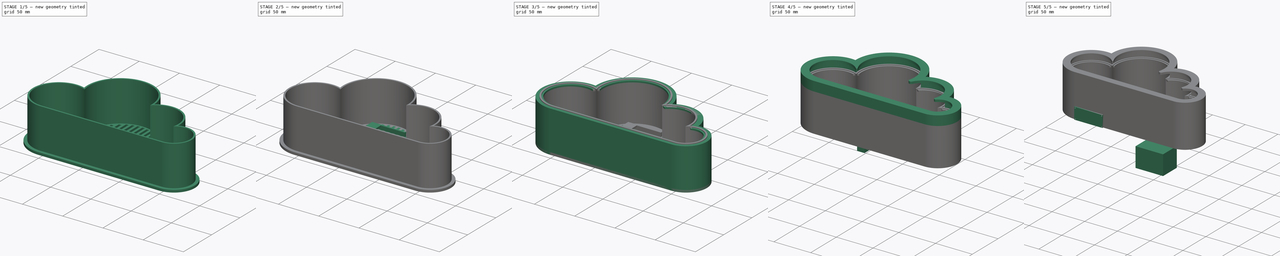
[diagram: build sequence overview — one tinted view per stage of 5, left to right]
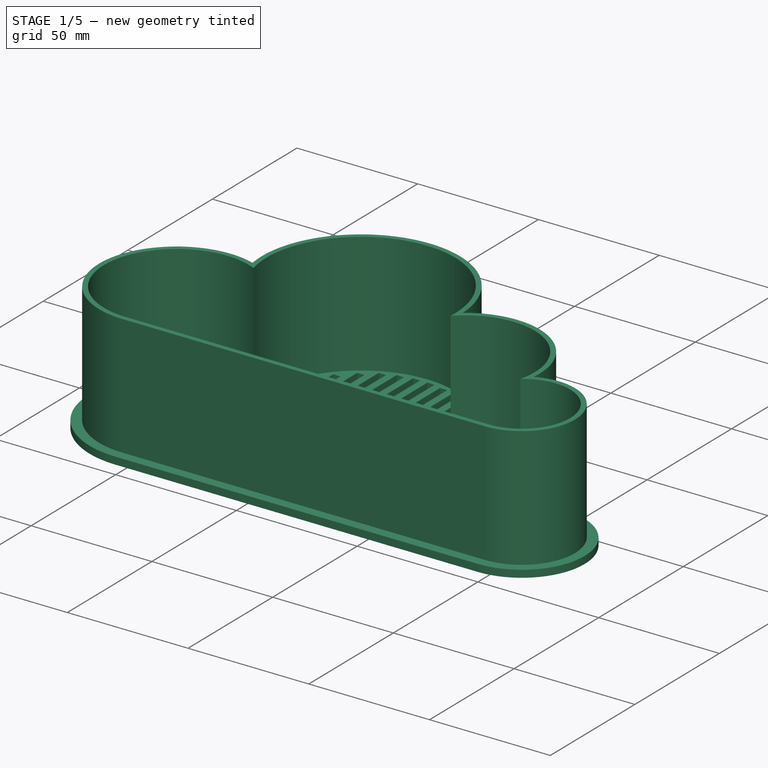
[diagram: stage 1 of 5 — iso view after this stage's code; geometry added in this stage tinted green]
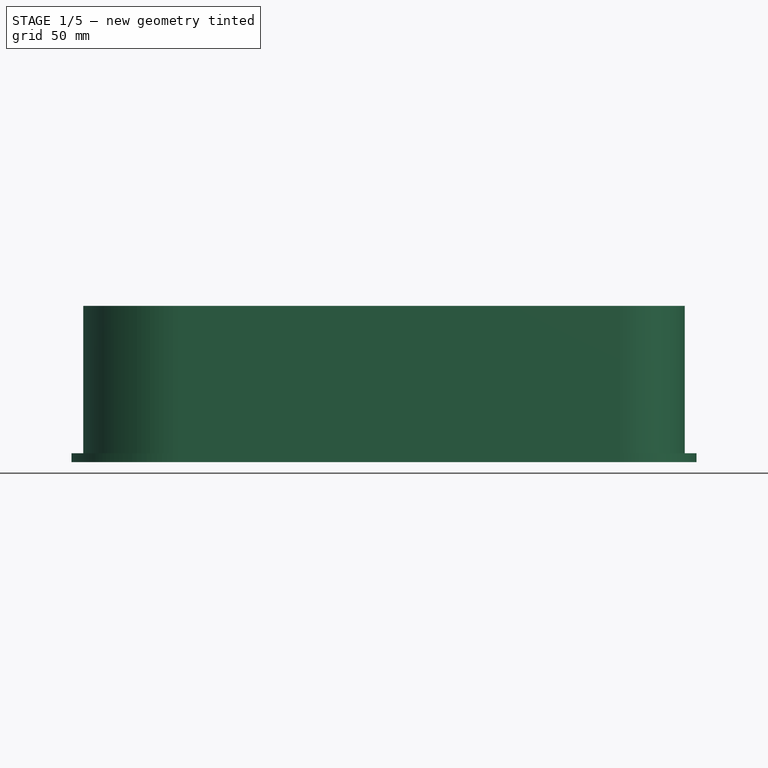
[diagram: stage 1 of 5 — front view after this stage's code; geometry added in this stage tinted green]
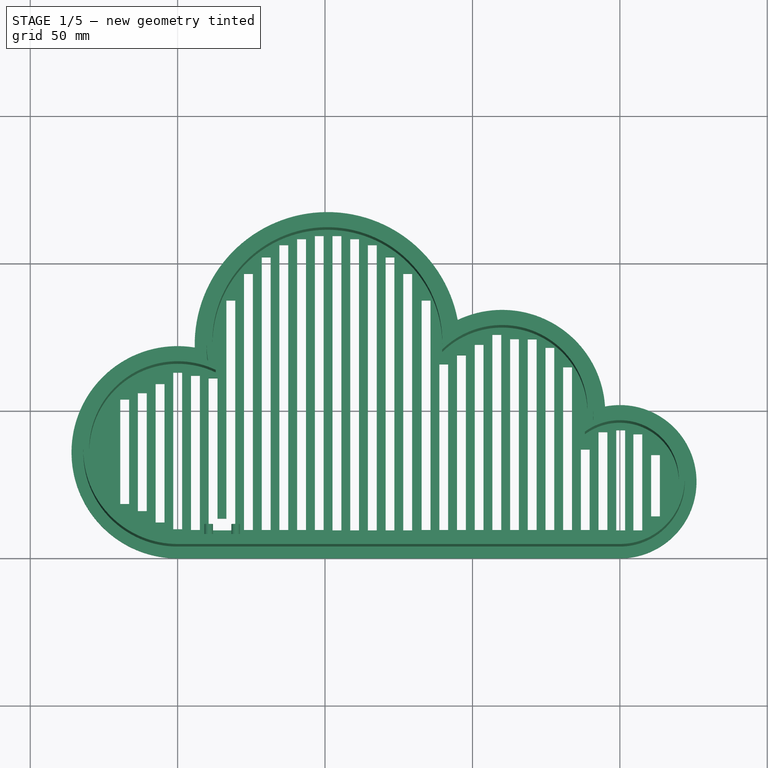
[diagram: stage 1 of 5 — top view after this stage's code; geometry added in this stage tinted green]
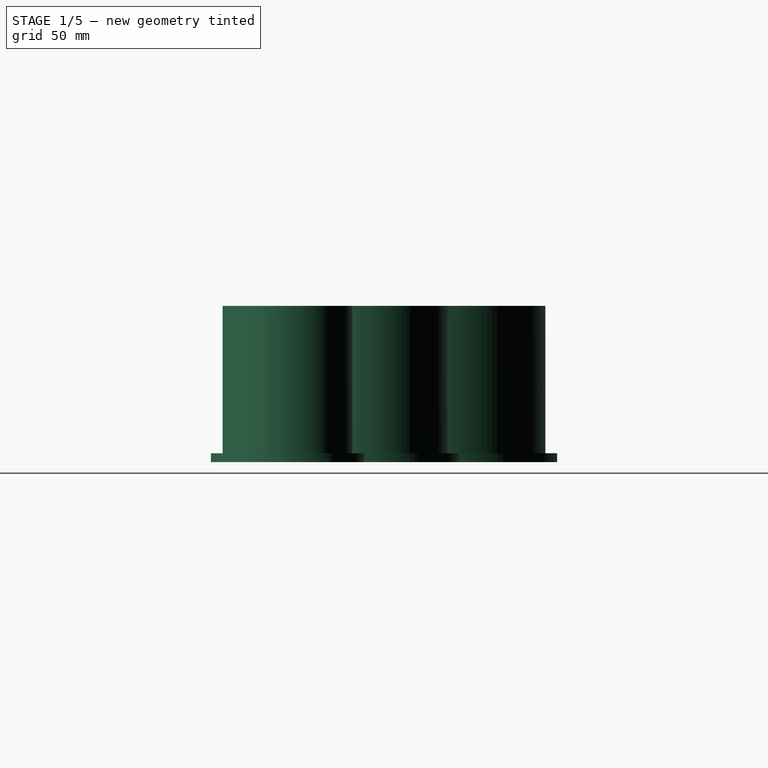
[diagram: stage 1 of 5 — right view after this stage's code; geometry added in this stage tinted green]
FCSTD DOCUMENT  (FreeCAD 0.19R22756 (Git))
Label: Base
License: All rights reserved
LicenseURL: http://en.wikipedia.org/wiki/All_rights_reserved
objects: Sketcher::SketchObject×28, PartDesign::Pad×20, PartDesign::Pocket×7, PartDesign::Body×5, PartDesign::Fillet×3, PartDesign::ShapeBinder×1, App::DocumentObjectGroup×1, Part::Box×1, Part::FeaturePython×1
note: 96 computed .brp shape members not serialized (recipe doc carries the construction recipe); baked Part::Feature solids carry a one-line shape summary decoded from their .brp

FEATURE [Sketcher::SketchObject] Sketch
  MapMode = 5
  Support = -> [XY_Plane]
  sketch-geometry (5):
    g0: LineSegment StartX=0 StartY=0 StartZ=0 EndX=150 EndY=0 EndZ=0
    g1: ArcOfCircle CenterX=0 CenterY=36 CenterZ=0 NormalX=0 NormalY=0 NormalZ=1 AngleXU=0 Radius=36 StartAngle=1.40919 EndAngle=4.71239
    g2: ArcOfCircle CenterX=150 CenterY=26 CenterZ=0 NormalX=0 NormalY=0 NormalZ=1 AngleXU=0 Radius=26 StartAngle=4.71239 EndAngle=8.04855
    g3: ArcOfCircle CenterX=50.7826 CenterY=72.4746 CenterZ=0 NormalX=0 NormalY=0 NormalZ=1 AngleXU=0 Radius=45 StartAngle=0.188086 EndAngle=3.16256
    g4: ArcOfCircle CenterX=110.043 CenterY=49.2918 CenterZ=0 NormalX=0 NormalY=0 NormalZ=1 AngleXU=0 Radius=35 StartAngle=0.0634042 EndAngle=2.01543
  constraints (15):
    c: Coincident(g0,g-1)
    c: PointOnObject(g0,g-1)
    c: DistanceX(g0,g0) = 150
    c: Vertical(g1,g0)
    c: Vertical(g2,g0)
    c: Coincident(g1,g3)
    c: Coincident(g3,g4)
    c: Coincident(g4,g2)
    c: Coincident(g2,g0)
    c: PointOnObject(g1,g0)
    c: Radius(g1) = 36
    c: Radius(g3) = 45
    c: Radius(g4) = 35
    c: Radius(g2) = 26
    c: Coincident(g2,g0)
FEATURE [PartDesign::Pad] Pad
  Direction = (1,1,1)
  Length = 3
  Length2 = 100
  Profile = -> Sketch
  Type = 0
FEATURE [Sketcher::SketchObject] Sketch001
  ExternalGeometry = -> [Pad]
  MapMode = 5
  Placement = pos=(0,0,3) rot=(0,0,1;0rad)
  Support = -> [Pad]
  sketch-geometry (10):
    g0: ArcOfCircle CenterX=0 CenterY=36 CenterZ=0 NormalX=0 NormalY=0 NormalZ=1 AngleXU=0 Radius=32 StartAngle=1.2448 EndAngle=4.71239
    g1: ArcOfCircle CenterX=50.7826 CenterY=72.4746 CenterZ=0 NormalX=0 NormalY=0 NormalZ=1 AngleXU=0 Radius=41 StartAngle=0.0448414 EndAngle=3.29241
    g2: ArcOfCircle CenterX=110.043 CenterY=49.2918 CenterZ=0 NormalX=0 NormalY=0 NormalZ=1 AngleXU=0 Radius=31 StartAngle=6.17732 EndAngle=8.48552
    g3: ArcOfCircle CenterX=150 CenterY=26 CenterZ=0 NormalX=0 NormalY=0 NormalZ=1 AngleXU=0 Radius=22 StartAngle=4.71239 EndAngle=8.28193
    g4: LineSegment StartX=1.335e-07 StartY=4 StartZ=0 EndX=150 EndY=4 EndZ=0
    g5: ArcOfCircle CenterX=0 CenterY=36 CenterZ=0 NormalX=0 NormalY=0 NormalZ=1 AngleXU=0 Radius=30 StartAngle=1.12505 EndAngle=4.71239
    g6: ArcOfCircle CenterX=50.7826 CenterY=72.4746 CenterZ=0 NormalX=0 NormalY=0 NormalZ=1 AngleXU=0 Radius=39 StartAngle=6.21868 EndAngle=9.66836
    g7: ArcOfCircle CenterX=110.043 CenterY=49.2918 CenterZ=0 NormalX=0 NormalY=0 NormalZ=1 AngleXU=0 Radius=29 StartAngle=6.03268 EndAngle=8.6314
    g8: ArcOfCircle CenterX=150 CenterY=26 CenterZ=0 NormalX=0 NormalY=0 NormalZ=1 AngleXU=0 Radius=20 StartAngle=4.71239 EndAngle=8.48887
    g9: LineSegment StartX=1.335e-07 StartY=6 StartZ=0 EndX=150 EndY=6 EndZ=0
  constraints (34):
    c: Radius(g-7) = 36
    c: Coincident(g0,g-7)
    c: Coincident(g1,g-3)
    c: Coincident(g2,g-4)
    c: Coincident(g3,g-5)
    c: Horizontal(g4)
    c: Radius(g0) = 32
    c: Radius(g-3) = 45
    c: Radius(g-4) = 35
    c: Radius(g-5) = 26
    c: Radius(g1) = 41
    c: Radius(g2) = 31
    c: Radius(g3) = 22
    c: Vertical(g4,g-6)
    c: Coincident(g0,g4)
    c: Coincident(g1,g0)
    c: Coincident(g2,g1)
    c: Coincident(g3,g2)
    c: Coincident(g5,g0)
    c: Coincident(g6,g1)
    c: Coincident(g7,g2)
    c: Coincident(g8,g3)
    c: Radius(g7) = 29
    c: Radius(g6) = 39
    c: Radius(g5) = 30
    c: Horizontal(g9)
    c: Vertical(g9,g3)
    c: Vertical(g9,g0)
    c: Coincident(g5,g9)
    c: Coincident(g6,g5)
    c: Coincident(g6,g7)
    c: Coincident(g8,g7)
    c: Coincident(g4,g3)
    c: Coincident(g8,g9)
FEATURE [PartDesign::Pad] Pad001
  BaseFeature = -> Pad
  Direction = (1,1,1)
  Length = 50
  Length2 = 100
  Profile = -> Sketch001
  Type = 0
FEATURE [Sketcher::SketchObject] Sketch002
  MapMode = 5
  Placement = pos=(0,0,3) rot=(0,0,1;0rad)
  Support = -> [Pad001]
  sketch-geometry (125):
    g0: LineSegment StartX=-13.47 StartY=56.0614 StartZ=0 EndX=-10.47 EndY=56.0614 EndZ=0
    g1: LineSegment StartX=-10.47 StartY=56.0614 StartZ=0 EndX=-10.47 EndY=16.0394 EndZ=0
    g2: LineSegment StartX=-10.47 StartY=16.0394 StartZ=0 EndX=-13.47 EndY=16.0394 EndZ=0
    g3: LineSegment StartX=-13.47 StartY=16.0394 StartZ=0 EndX=-13.47 EndY=56.0614 EndZ=0
    g4: LineSegment StartX=-7.47 StartY=59.1651 StartZ=0 EndX=-4.47 EndY=59.1651 EndZ=0
    g5: LineSegment StartX=-4.47 StartY=59.1651 StartZ=0 EndX=-4.47 EndY=12.181 EndZ=0
    g6: LineSegment StartX=-4.47 StartY=12.181 StartZ=0 EndX=-7.47 EndY=12.181 EndZ=0
    g7: LineSegment StartX=-7.47 StartY=12.181 StartZ=0 EndX=-7.47 EndY=59.1651 EndZ=0
    g8: LineSegment StartX=-19.47 StartY=18.4388 StartZ=0 EndX=-19.47 EndY=53.8848 EndZ=0
    g9: LineSegment StartX=-19.47 StartY=53.8848 StartZ=0 EndX=-16.47 EndY=53.8848 EndZ=0
    g10: LineSegment StartX=-16.47 StartY=53.8848 StartZ=0 EndX=-16.47 EndY=18.4388 EndZ=0
    g11: LineSegment StartX=-16.47 StartY=18.4388 StartZ=0 EndX=-19.47 EndY=18.4388 EndZ=0
    g12: LineSegment StartX=-1.47 StartY=63.008 StartZ=0 EndX=1.53 EndY=63.008 EndZ=0
    g13: LineSegment StartX=1.53 StartY=63.008 StartZ=0 EndX=1.53 EndY=9.86382 EndZ=0
    g14: LineSegment StartX=1.53 StartY=9.86382 StartZ=0 EndX=-1.47 EndY=9.86382 EndZ=0
    g15: LineSegment StartX=-1.47 StartY=9.86382 StartZ=0 EndX=-1.47 EndY=63.008 EndZ=0
    g16: LineSegment StartX=4.53 StartY=61.9602 StartZ=0 EndX=7.53 EndY=61.9602 EndZ=0
    g17: LineSegment StartX=7.53 StartY=61.9602 StartZ=0 EndX=7.53 EndY=9.63623 EndZ=0
    g18: LineSegment StartX=7.53 StartY=9.63623 StartZ=0 EndX=4.53 EndY=9.63623 EndZ=0
    g19: LineSegment StartX=4.53 StartY=9.63623 StartZ=0 EndX=4.53 EndY=61.9602 EndZ=0
    g20: LineSegment StartX=10.53 StartY=61.0802 StartZ=0 EndX=13.53 EndY=61.0802 EndZ=0
    g21: LineSegment StartX=13.53 StartY=61.0802 StartZ=0 EndX=13.53 EndY=9.63623 EndZ=0
    g22: LineSegment StartX=13.53 StartY=9.63623 StartZ=0 EndX=10.53 EndY=9.63623 EndZ=0
    g23: LineSegment StartX=10.53 StartY=9.63623 StartZ=0 EndX=10.53 EndY=61.0802 EndZ=0
    g24: LineSegment StartX=16.53 StartY=87.4804 StartZ=0 EndX=19.53 EndY=87.4804 EndZ=0
    g25: LineSegment StartX=19.53 StartY=87.4804 StartZ=0 EndX=19.53 EndY=9.63623 EndZ=0
    g26: LineSegment StartX=19.53 StartY=9.63623 StartZ=0 EndX=16.53 EndY=9.63623 EndZ=0
    g27: LineSegment StartX=16.53 StartY=9.63623 StartZ=0 EndX=16.53 EndY=87.4804 EndZ=0
    g28: LineSegment StartX=22.53 StartY=96.525 StartZ=0 EndX=25.53 EndY=96.525 EndZ=0
    g29: LineSegment StartX=25.53 StartY=96.525 StartZ=0 EndX=25.53 EndY=9.63623 EndZ=0
    g30: LineSegment StartX=25.53 StartY=9.63623 StartZ=0 EndX=22.53 EndY=9.63623 EndZ=0
    g31: LineSegment StartX=22.53 StartY=9.63623 StartZ=0 EndX=22.53 EndY=96.525 EndZ=0
    g32: LineSegment StartX=28.53 StartY=102.114 StartZ=0 EndX=31.53 EndY=102.114 EndZ=0
    g33: LineSegment StartX=31.53 StartY=102.114 StartZ=0 EndX=31.53 EndY=9.63623 EndZ=0
    g34: LineSegment StartX=31.53 StartY=9.63623 StartZ=0 EndX=28.53 EndY=9.63623 EndZ=0
    g35: LineSegment StartX=28.53 StartY=9.63623 StartZ=0 EndX=28.53 EndY=102.114 EndZ=0
    g36: LineSegment StartX=34.53 StartY=106.283 StartZ=0 EndX=37.53 EndY=106.283 EndZ=0
    g37: LineSegment StartX=37.53 StartY=106.283 StartZ=0 EndX=37.53 EndY=9.63623 EndZ=0
    g38: LineSegment StartX=37.53 StartY=9.63623 StartZ=0 EndX=34.53 EndY=9.63623 EndZ=0
    g39: LineSegment StartX=34.53 StartY=9.63623 StartZ=0 EndX=34.53 EndY=106.283 EndZ=0
    g40: LineSegment StartX=40.53 StartY=108.315 StartZ=0 EndX=43.53 EndY=108.315 EndZ=0
    g41: LineSegment StartX=43.53 StartY=108.315 StartZ=0 EndX=43.53 EndY=9.63623 EndZ=0
    g42: LineSegment StartX=43.53 StartY=9.63623 StartZ=0 EndX=40.53 EndY=9.63623 EndZ=0
    g43: LineSegment StartX=40.53 StartY=9.63623 StartZ=0 EndX=40.53 EndY=108.315 EndZ=0
    g44: LineSegment StartX=46.53 StartY=109.376 StartZ=0 EndX=49.53 EndY=109.376 EndZ=0
    g45: LineSegment StartX=49.53 StartY=109.376 StartZ=0 EndX=49.53 EndY=9.63623 EndZ=0
    g46: LineSegment StartX=49.53 StartY=9.63623 StartZ=0 EndX=46.53 EndY=9.63623 EndZ=0
    g47: LineSegment StartX=46.53 StartY=9.63623 StartZ=0 EndX=46.53 EndY=109.376 EndZ=0
    g48: LineSegment StartX=51.03 StartY=120.482 StartZ=0 EndX=51.03 EndY=-2.13531 EndZ=0
    g49: LineSegment StartX=85.7634 StartY=87.4804 StartZ=0 EndX=82.7634 EndY=87.4804 EndZ=0
    g50: LineSegment StartX=82.7634 StartY=87.4804 StartZ=0 EndX=82.7634 EndY=9.63623 EndZ=0
    g51: LineSegment StartX=82.7634 StartY=9.63623 StartZ=0 EndX=85.7634 EndY=9.63623 EndZ=0
    g52: LineSegment StartX=85.7634 StartY=9.63623 StartZ=0 EndX=85.7634 EndY=87.4804 EndZ=0
    g53: LineSegment StartX=79.53 StartY=96.525 StartZ=0 EndX=76.53 EndY=96.525 EndZ=0
    g54: LineSegment StartX=76.53 StartY=96.525 StartZ=0 EndX=76.53 EndY=9.49776 EndZ=0
    g55: LineSegment StartX=76.53 StartY=9.49776 StartZ=0 EndX=79.53 EndY=9.49776 EndZ=0
    g56: LineSegment StartX=79.53 StartY=9.49776 StartZ=0 EndX=79.53 EndY=96.525 EndZ=0
    g57: LineSegment StartX=73.53 StartY=102.114 StartZ=0 EndX=70.53 EndY=102.114 EndZ=0
    g58: LineSegment StartX=70.53 StartY=102.114 StartZ=0 EndX=70.53 EndY=9.49776 EndZ=0
    g59: LineSegment StartX=70.53 StartY=9.49776 StartZ=0 EndX=73.53 EndY=9.49776 EndZ=0
    g60: LineSegment StartX=73.53 StartY=9.49776 StartZ=0 EndX=73.53 EndY=102.114 EndZ=0
    g61: LineSegment StartX=67.53 StartY=106.283 StartZ=0 EndX=64.53 EndY=106.283 EndZ=0
    g62: LineSegment StartX=64.53 StartY=106.283 StartZ=0 EndX=64.53 EndY=9.49776 EndZ=0
    g63: LineSegment StartX=64.53 StartY=9.49776 StartZ=0 EndX=67.53 EndY=9.49776 EndZ=0
    g64: LineSegment StartX=67.53 StartY=9.49776 StartZ=0 EndX=67.53 EndY=106.283 EndZ=0
    g65: LineSegment StartX=61.53 StartY=108.315 StartZ=0 EndX=58.53 EndY=108.315 EndZ=0
    g66: LineSegment StartX=58.53 StartY=108.315 StartZ=0 EndX=58.53 EndY=9.49776 EndZ=0
    g67: LineSegment StartX=58.53 StartY=9.49776 StartZ=0 EndX=61.53 EndY=9.49776 EndZ=0
    g68: LineSegment StartX=61.53 StartY=9.49776 StartZ=0 EndX=61.53 EndY=108.315 EndZ=0
    g69: LineSegment StartX=55.53 StartY=109.376 StartZ=0 EndX=52.53 EndY=109.376 EndZ=0
    g70: LineSegment StartX=52.53 StartY=109.376 StartZ=0 EndX=52.53 EndY=9.49776 EndZ=0
    g71: LineSegment StartX=52.53 StartY=9.49776 StartZ=0 EndX=55.53 EndY=9.49776 EndZ=0
    g72: LineSegment StartX=55.53 StartY=9.49776 StartZ=0 EndX=55.53 EndY=109.376 EndZ=0
    g73: LineSegment StartX=115.763 StartY=74.3656 StartZ=0 EndX=112.763 EndY=74.3656 EndZ=0
    g74: LineSegment StartX=112.763 StartY=74.3656 StartZ=0 EndX=112.763 EndY=9.63623 EndZ=0
    g75: LineSegment StartX=112.763 StartY=9.63623 StartZ=0 EndX=115.763 EndY=9.63623 EndZ=0
    g76: LineSegment StartX=115.763 StartY=9.63623 StartZ=0 EndX=115.763 EndY=74.3656 EndZ=0
    g77: LineSegment StartX=109.763 StartY=75.8852 StartZ=0 EndX=106.763 EndY=75.8852 EndZ=0
    g78: LineSegment StartX=106.763 StartY=75.8852 StartZ=0 EndX=106.763 EndY=9.63623 EndZ=0
    g79: LineSegment StartX=106.763 StartY=9.63623 StartZ=0 EndX=109.763 EndY=9.63623 EndZ=0
    g80: LineSegment StartX=109.763 StartY=9.63623 StartZ=0 EndX=109.763 EndY=75.8852 EndZ=0
    g81: LineSegment StartX=121.763 StartY=9.63623 StartZ=0 EndX=121.763 EndY=74.301 EndZ=0
    g82: LineSegment StartX=121.763 StartY=74.301 StartZ=0 EndX=118.763 EndY=74.301 EndZ=0
    g83: LineSegment StartX=118.763 StartY=74.301 StartZ=0 EndX=118.763 EndY=9.63623 EndZ=0
    g84: LineSegment StartX=118.763 StartY=9.63623 StartZ=0 EndX=121.763 EndY=9.63623 EndZ=0
    g85: LineSegment StartX=103.763 StartY=72.4516 StartZ=0 EndX=100.763 EndY=72.4516 EndZ=0
    g86: LineSegment StartX=100.763 StartY=72.4516 StartZ=0 EndX=100.763 EndY=9.63623 EndZ=0
    g87: LineSegment StartX=100.763 StartY=9.63623 StartZ=0 EndX=103.763 EndY=9.63623 EndZ=0
    g88: LineSegment StartX=103.763 StartY=9.63623 StartZ=0 EndX=103.763 EndY=72.4516 EndZ=0
    g89: LineSegment StartX=97.7634 StartY=68.8878 StartZ=0 EndX=94.7634 EndY=68.8878 EndZ=0
    g90: LineSegment StartX=94.7634 StartY=68.8878 StartZ=0 EndX=94.7634 EndY=9.63623 EndZ=0
    g91: LineSegment StartX=94.7634 StartY=9.63623 StartZ=0 EndX=97.7634 EndY=9.63623 EndZ=0
    g92: LineSegment StartX=97.7634 StartY=9.63623 StartZ=0 EndX=97.7634 EndY=68.8878 EndZ=0
    g93: LineSegment StartX=91.7634 StartY=65.8063 StartZ=0 EndX=88.7634 EndY=65.8063 EndZ=0
    g94: LineSegment StartX=88.7634 StartY=65.8063 StartZ=0 EndX=88.7634 EndY=9.63623 EndZ=0
    g95: LineSegment StartX=88.7634 StartY=9.63623 StartZ=0 EndX=91.7634 EndY=9.63623 EndZ=0
    g96: LineSegment StartX=91.7634 StartY=9.63623 StartZ=0 EndX=91.7634 EndY=65.8063 EndZ=0
    g97: LineSegment StartX=133.763 StartY=64.824 StartZ=0 EndX=130.763 EndY=64.824 EndZ=0
    g98: LineSegment StartX=130.763 StartY=64.824 StartZ=0 EndX=130.763 EndY=9.63623 EndZ=0
    g99: LineSegment StartX=130.763 StartY=9.63623 StartZ=0 EndX=133.763 EndY=9.63623 EndZ=0
    g100: LineSegment StartX=133.763 StartY=9.63623 StartZ=0 EndX=133.763 EndY=64.824 EndZ=0
    g101: LineSegment StartX=127.763 StartY=71.4476 StartZ=0 EndX=124.763 EndY=71.4476 EndZ=0
    g102: LineSegment StartX=124.763 StartY=71.4476 StartZ=0 EndX=124.763 EndY=9.63623 EndZ=0
    g103: LineSegment StartX=124.763 StartY=9.63623 StartZ=0 EndX=127.763 EndY=9.63623 EndZ=0
    g104: LineSegment StartX=127.763 StartY=9.63623 StartZ=0 EndX=127.763 EndY=71.4476 EndZ=0
    g105: LineSegment StartX=139.763 StartY=9.63623 StartZ=0 EndX=139.763 EndY=36.9511 EndZ=0
    g106: LineSegment StartX=139.763 StartY=36.9511 StartZ=0 EndX=136.763 EndY=36.9511 EndZ=0
    g107: LineSegment StartX=136.763 StartY=36.9511 StartZ=0 EndX=136.763 EndY=9.63623 EndZ=0
    g108: LineSegment StartX=136.763 StartY=9.63623 StartZ=0 EndX=139.763 EndY=9.63623 EndZ=0
    g109: LineSegment StartX=145.763 StartY=9.62855 StartZ=0 EndX=145.763 EndY=42.8515 EndZ=0
    g110: LineSegment StartX=145.763 StartY=42.8515 StartZ=0 EndX=142.763 EndY=42.8515 EndZ=0
    g111: LineSegment StartX=142.763 StartY=42.8515 StartZ=0 EndX=142.763 EndY=9.62855 EndZ=0
    g112: LineSegment StartX=142.763 StartY=9.62855 StartZ=0 EndX=145.763 EndY=9.62855 EndZ=0
    g113: LineSegment StartX=151.763 StartY=9.49494 StartZ=0 EndX=151.763 EndY=43.454 EndZ=0
    g114: LineSegment StartX=151.763 StartY=43.454 StartZ=0 EndX=148.763 EndY=43.454 EndZ=0
    g115: LineSegment StartX=148.763 StartY=43.454 StartZ=0 EndX=148.763 EndY=9.49494 EndZ=0
    g116: LineSegment StartX=148.763 StartY=9.49494 StartZ=0 EndX=151.763 EndY=9.49494 EndZ=0
    g117: LineSegment StartX=157.585 StartY=9.49494 StartZ=0 EndX=157.585 EndY=42.1154 EndZ=0
    g118: LineSegment StartX=157.585 StartY=42.1154 StartZ=0 EndX=154.585 EndY=42.1154 EndZ=0
    g119: LineSegment StartX=154.585 StartY=42.1154 StartZ=0 EndX=154.585 EndY=9.49494 EndZ=0
    g120: LineSegment StartX=154.585 StartY=9.49494 StartZ=0 EndX=157.585 EndY=9.49494 EndZ=0
    g121: LineSegment StartX=163.585 StartY=14.2502 StartZ=0 EndX=163.585 EndY=35.0807 EndZ=0
    g122: LineSegment StartX=163.585 StartY=35.0807 StartZ=0 EndX=160.585 EndY=35.0807 EndZ=0
    g123: LineSegment StartX=160.585 StartY=35.0807 StartZ=0 EndX=160.585 EndY=14.2502 EndZ=0
    g124: LineSegment StartX=160.585 StartY=14.2502 StartZ=0 EndX=163.585 EndY=14.2502 EndZ=0
  constraints (317):
    c: Coincident(g0,g1)
    c: Coincident(g1,g2)
    c: Coincident(g2,g3)
    c: Coincident(g3,g0)
    c: Horizontal(g0)
    c: Horizontal(g2)
    c: Vertical(g1)
    c: Vertical(g3)
    c: DistanceX(g0,g0) = 3
    c: Coincident(g4,g5)
    c: Coincident(g5,g6)
    c: Coincident(g6,g7)
    c: Coincident(g7,g4)
    c: Horizontal(g4)
    c: Horizontal(g6)
    c: Vertical(g5)
    c: Vertical(g7)
    c: DistanceX(g4,g4) = 3
    c: DistanceX(g0,g4) = 3
    c: Coincident(g9,g10)
    c: Coincident(g10,g11)
    c: Coincident(g11,g8)
    c: Coincident(g8,g9)
    c: Horizontal(g9)
    c: Horizontal(g11)
    c: Vertical(g10)
    c: Vertical(g8)
    c: DistanceX(g9,g9) = 3
    c: DistanceX(g9,g0) = 3
    c: Coincident(g12,g13)
    c: Coincident(g13,g14)
    c: Coincident(g14,g15)
    c: Coincident(g15,g12)
    c: Horizontal(g12)
    c: Horizontal(g14)
    c: Vertical(g13)
    c: Vertical(g15)
    c: DistanceX(g12,g12) = 3
    c: DistanceX(g5,g14) = 3
    c: Coincident(g16,g17)
    c: Coincident(g17,g18)
    c: Coincident(g18,g19)
    c: Coincident(g19,g16)
    c: Horizontal(g16)
    c: Horizontal(g18)
    c: Vertical(g17)
    c: Vertical(g19)
    c: DistanceX(g16,g16) = 3
    c: DistanceX(g13,g18) = 3
    c: Coincident(g20,g21)
    c: Coincident(g21,g22)
    c: Coincident(g22,g23)
    c: Coincident(g23,g20)
    c: Horizontal(g20)
    c: Horizontal(g22)
    c: Vertical(g21)
    c: Vertical(g23)
    c: DistanceX(g20,g20) = 3
    c: DistanceX(g17,g22) = 3
    c: Coincident(g24,g25)
    c: Coincident(g25,g26)
    c: Coincident(g26,g27)
    c: Coincident(g27,g24)
    c: Horizontal(g24)
    c: Horizontal(g26)
    c: Vertical(g25)
    c: Vertical(g27)
    c: DistanceX(g24,g24) = 3
    c: DistanceX(g21,g26) = 3
    c: DistanceX(g8,g-1) = 19.47
    c: Coincident(g28,g29)
    c: Coincident(g29,g30)
    c: Coincident(g30,g31)
    c: Coincident(g31,g28)
    c: Horizontal(g28)
    c: Horizontal(g30)
    c: Vertical(g29)
    c: Vertical(g31)
    c: DistanceX(g28,g28) = 3
    c: DistanceX(g25,g30) = 3
    c: Coincident(g32,g33)
    c: Coincident(g33,g34)
    c: Coincident(g34,g35)
    c: Coincident(g35,g32)
    c: Horizontal(g32)
    c: Horizontal(g34)
    c: Vertical(g33)
    c: Vertical(g35)
    c: DistanceX(g32,g32) = 3
    c: DistanceX(g29,g34) = 3
    c: Horizontal(g34,g29)
    c: Horizontal(g25,g30)
    c: Horizontal(g21,g26)
    c: Horizontal(g17,g22)
    c: Coincident(g36,g37)
    c: Coincident(g37,g38)
    c: Coincident(g38,g39)
    c: Coincident(g39,g36)
    c: Horizontal(g36)
    c: Horizontal(g38)
    c: Vertical(g37)
    c: Vertical(g39)
    c: DistanceX(g36,g36) = 3
    c: DistanceX(g33,g38) = 3
    c: Horizontal(g33,g38)
    c: Coincident(g40,g41)
    c: Coincident(g41,g42)
    c: Coincident(g42,g43)
    c: Coincident(g43,g40)
    c: Horizontal(g40)
    c: Horizontal(g42)
    c: Vertical(g41)
    c: Vertical(g43)
    c: DistanceX(g40,g40) = 3
    c: DistanceX(g37,g42) = 3
    c: Horizontal(g37,g42)
    c: Coincident(g44,g45)
    c: Coincident(g45,g46)
    c: Coincident(g46,g47)
    c: Coincident(g47,g44)
    c: Horizontal(g44)
    c: Horizontal(g46)
    c: Vertical(g45)
    c: Vertical(g47)
    c: DistanceX(g44,g44) = 3
    c: Horizontal(g46,g41)
    c: DistanceX(g41,g46) = 3
    c: Vertical(g48)
    c: DistanceX(g44,g48) = 1.5
    c: Coincident(g49,g50)
    c: Coincident(g50,g51)
    c: Coincident(g51,g52)
    c: Coincident(g52,g49)
    c: Horizontal(g49)
    c: Horizontal(g51)
    c: Vertical(g50)
    c: Vertical(g52)
    c: Coincident(g53,g54)
    c: Coincident(g54,g55)
    c: Coincident(g55,g56)
    c: Coincident(g56,g53)
    c: Horizontal(g53)
    c: Horizontal(g55)
    c: Vertical(g54)
    c: Vertical(g56)
    c: Coincident(g57,g58)
    c: Coincident(g58,g59)
    c: Coincident(g59,g60)
    c: Coincident(g60,g57)
    c: Horizontal(g57)
    c: Horizontal(g59)
    c: Vertical(g58)
    c: Vertical(g60)
    c: Coincident(g61,g62)
    c: Coincident(g62,g63)
    c: Coincident(g63,g64)
    c: Coincident(g64,g61)
    c: Horizontal(g61)
    c: Horizontal(g63)
    c: Vertical(g62)
    c: Vertical(g64)
    c: Coincident(g65,g66)
    c: Coincident(g66,g67)
    c: Coincident(g67,g68)
    c: Coincident(g68,g65)
    c: Horizontal(g65)
    c: Horizontal(g67)
    c: Vertical(g66)
    c: Vertical(g68)
    c: Coincident(g69,g70)
    c: Coincident(g70,g71)
    c: Coincident(g71,g72)
    c: Coincident(g72,g69)
    c: Horizontal(g69)
    c: Horizontal(g71)
    c: Vertical(g70)
    c: Vertical(g72)
    c: Coincident(g73,g74)
    c: Coincident(g74,g75)
    c: Coincident(g75,g76)
    c: Coincident(g76,g73)
    c: Horizontal(g73)
    c: Horizontal(g75)
    c: Vertical(g74)
    c: Vertical(g76)
    c: Coincident(g77,g78)
    c: Coincident(g78,g79)
    c: Coincident(g79,g80)
    c: Coincident(g80,g77)
    c: Horizontal(g77)
    c: Horizontal(g79)
    c: Vertical(g78)
    c: Vertical(g80)
    c: Coincident(g82,g83)
    c: Coincident(g83,g84)
    c: Coincident(g84,g81)
    c: Coincident(g81,g82)
    c: Horizontal(g82)
    c: Horizontal(g84)
    c: Vertical(g83)
    c: Vertical(g81)
    c: Coincident(g85,g86)
    c: Coincident(g86,g87)
    c: Coincident(g87,g88)
    c: Coincident(g88,g85)
    c: Horizontal(g85)
    c: Horizontal(g87)
    c: Vertical(g86)
    c: Vertical(g88)
    c: Coincident(g89,g90)
    c: Coincident(g90,g91)
    c: Coincident(g91,g92)
    c: Coincident(g92,g89)
    c: Horizontal(g89)
    c: Horizontal(g91)
    c: Vertical(g90)
    c: Vertical(g92)
    c: Coincident(g93,g94)
    c: Coincident(g94,g95)
    c: Coincident(g95,g96)
    c: Coincident(g96,g93)
    c: Horizontal(g93)
    c: Horizontal(g95)
    c: Vertical(g94)
    c: Vertical(g96)
    c: DistanceX(g51,g94) = 3
    c: DistanceX(g95,g90) = 3
    c: DistanceX(g91,g86) = 3
    c: DistanceX(g87,g78) = 3
    c: DistanceX(g93,g93) = 3
    c: DistanceX(g89,g89) = 3
    c: DistanceX(g85,g85) = 3
    c: DistanceX(g77,g77) = 3
    c: DistanceX(g77,g73) = 3
    c: DistanceX(g73,g73) = 3
    c: DistanceX(g73,g82) = 3
    c: DistanceX(g82,g82) = 3
    c: Horizontal(g51,g94)
    c: Horizontal(g95,g90)
    c: Horizontal(g91,g86)
    c: Horizontal(g87,g78)
    c: Horizontal(g79,g74)
    c: Horizontal(g75,g83)
    c: Coincident(g97,g98)
    c: Coincident(g98,g99)
    c: Coincident(g99,g100)
    c: Coincident(g100,g97)
    c: Horizontal(g97)
    c: Horizontal(g99)
    c: Vertical(g98)
    c: Vertical(g100)
    c: Coincident(g101,g102)
    c: Coincident(g102,g103)
    c: Coincident(g103,g104)
    c: Coincident(g104,g101)
    c: Horizontal(g101)
    c: Horizontal(g103)
    c: Vertical(g102)
    c: Vertical(g104)
    c: Coincident(g106,g107)
    c: Coincident(g107,g108)
    c: Coincident(g108,g105)
    c: Coincident(g105,g106)
    c: Horizontal(g106)
    c: Horizontal(g108)
    c: Vertical(g107)
    c: Vertical(g105)
    c: DistanceX(g101,g101) = 3
    c: DistanceX(g101,g97) = 3
    c: DistanceX(g97,g97) = 3
    c: DistanceX(g97,g106) = 3
    c: DistanceX(g106,g106) = 3
    c: Horizontal(g103,g98)
    c: Horizontal(g99,g107)
    c: Horizontal(g81,g102)
    c: DistanceX(g81,g102) = 3
    c: DistanceX(g49,g49) = 3
    c: Horizontal(g50,g45)
    c: Coincident(g110,g111)
    c: Coincident(g111,g112)
    c: Coincident(g112,g109)
    c: Coincident(g109,g110)
    c: Horizontal(g110)
    c: Horizontal(g112)
    c: Vertical(g111)
    c: Vertical(g109)
    c: DistanceX(g110,g110) = 3
    c: Coincident(g114,g115)
    c: Coincident(g115,g116)
    c: Coincident(g116,g113)
    c: Coincident(g113,g114)
    c: Horizontal(g114)
    c: Horizontal(g116)
    c: Vertical(g115)
    c: Vertical(g113)
    c: DistanceX(g114,g114) = 3
    c: DistanceX(g105,g111) = 3
    c: DistanceX(g109,g115) = 3
    c: Coincident(g118,g119)
    c: Coincident(g119,g120)
    c: Coincident(g120,g117)
    c: Coincident(g117,g118)
    c: Horizontal(g118)
    c: Horizontal(g120)
    c: Vertical(g119)
    c: Vertical(g117)
    c: DistanceX(g118,g118) = 3
    c: Coincident(g122,g123)
    c: Coincident(g123,g124)
    c: Coincident(g124,g121)
    c: Coincident(g121,g122)
    c: Horizontal(g122)
    c: Horizontal(g124)
    c: Vertical(g123)
    c: Vertical(g121)
    c: DistanceX(g122,g122) = 3
    c: DistanceX(g117,g123) = 3
FEATURE [PartDesign::Pocket] Pocket
  BaseFeature = -> Pad001
  Length = 5
  Length2 = 100
  Profile = -> Sketch002
  Type = 0
FEATURE [PartDesign::Body] Body002  label="SoporteUSB"
  Group = -> [CopyPocket,Sketch006,Pad004,Sketch007,Pad005]
  Origin = -> Origin002
  Tip = -> Pad005
FEATURE [App::DocumentObjectGroup] Parts
  Group = -> [Body001,Body002]
FEATURE [Sketcher::SketchObject] Sketch008
  ExternalGeometry = -> [Pocket]
  MapMode = 5
  Placement = pos=(0,6,0) rot=(0,0.707107,0.707107;3.14159rad)
  Support = -> [Pocket]
  sketch-geometry (4):
    g0: LineSegment StartX=-22.171 StartY=3 StartZ=0 EndX=-8.031 EndY=3 EndZ=0
    g1: LineSegment StartX=-8.031 StartY=3 StartZ=0 EndX=-8.031 EndY=18.18 EndZ=0
    g2: LineSegment StartX=-8.031 StartY=18.18 StartZ=0 EndX=-22.171 EndY=18.18 EndZ=0
    g3: LineSegment StartX=-22.171 StartY=18.18 StartZ=0 EndX=-22.171 EndY=3 EndZ=0
  constraints (11):
    c: Coincident(g0,g1)
    c: Coincident(g1,g2)
    c: Coincident(g2,g3)
    c: Coincident(g3,g0)
    c: Horizontal(g0)
    c: Horizontal(g2)
    c: Vertical(g1)
    c: Vertical(g3)
    c: DistanceY(g3,g3) = 15.18
    c: DistanceX(g2,g2) = 14.14
    c: Horizontal(g-3,g0)
FEATURE [PartDesign::Pad] Pad006
  BaseFeature = -> Pocket
  Direction = (1,1,1)
  Length = 2
  Length2 = 100
  Profile = -> Sketch008
  Type = 0
FEATURE [Sketcher::SketchObject] Sketch009
  ExternalGeometry = -> [Pad006]
  MapMode = 5
  Placement = pos=(0,8,-1.8e-15) rot=(0,0.707107,0.707107;3.14159rad)
  Support = -> [Pad006]
  sketch-geometry (2):
    g0: Circle CenterX=-10.531 CenterY=12.18 CenterZ=0 NormalX=0 NormalY=0 NormalZ=1 AngleXU=0 Radius=1.45
    g1: Circle CenterX=-19.671 CenterY=12.18 CenterZ=0 NormalX=0 NormalY=0 NormalZ=1 AngleXU=0 Radius=1.45
  constraints (6):
    c: Diameter(g0) = 2.9
    c: DistanceY(g0,g-3) = 6
    c: DistanceX(g0,g-3) = 2.5
    c: Equal(g0,g1) = 2.9
    c: Horizontal(g1,g0)
    c: DistanceX(g-3,g1) = 2.5
FEATURE [PartDesign::Pad] Pad007
  BaseFeature = -> Pad006
  Direction = (1,1,1)
  Length = 3.5
  Length2 = 100
  Profile = -> Sketch009
  Type = 0
FEATURE [Sketcher::SketchObject] Sketch010
  ExternalGeometry = -> [Pad007]
  MapMode = 5
  Placement = pos=(0,0,3) rot=(0,0,1;0rad)
  Support = -> [Pad007]
  sketch-geometry (5):
    g0: LineSegment StartX=10.851 StartY=13.5 StartZ=0 EndX=19.351 EndY=13.5 EndZ=0
    g1: LineSegment StartX=19.351 StartY=13.5 StartZ=0 EndX=19.351 EndY=9.5 EndZ=0
    g2: LineSegment StartX=19.351 StartY=9.5 StartZ=0 EndX=10.851 EndY=9.5 EndZ=0
    g3: LineSegment StartX=10.851 StartY=9.5 StartZ=0 EndX=10.851 EndY=13.5 EndZ=0
    g4: LineSegment [constr] StartX=15.101 StartY=26.3177 StartZ=0 EndX=15.101 EndY=8 EndZ=0
  constraints (13):
    c: Coincident(g0,g1)
    c: Coincident(g1,g2)
    c: Coincident(g2,g3)
    c: Coincident(g3,g0)
    c: Horizontal(g0)
    c: Horizontal(g2)
    c: Vertical(g1)
    c: Vertical(g3)
    c: DistanceX(g0,g0) = 8.5
    c: DistanceY(g3,g3) = 4
    c: Symmetric(g-3,g-3,g4)
    c: Symmetric(g0,g0,g4)
    c: DistanceY(g-3,g2) = 1.5
FEATURE [PartDesign::Pocket] Pocket002
  BaseFeature = -> Pad007
  Length = 5
  Length2 = 100
  Profile = -> Sketch010
  Type = 0
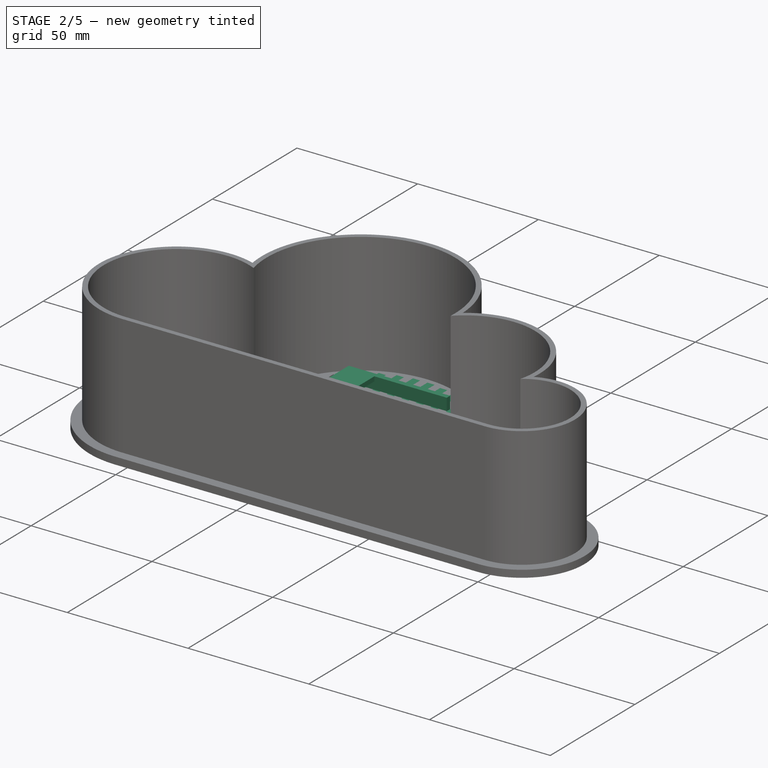
[diagram: stage 2 of 5 — iso view after this stage's code; geometry added in this stage tinted green]
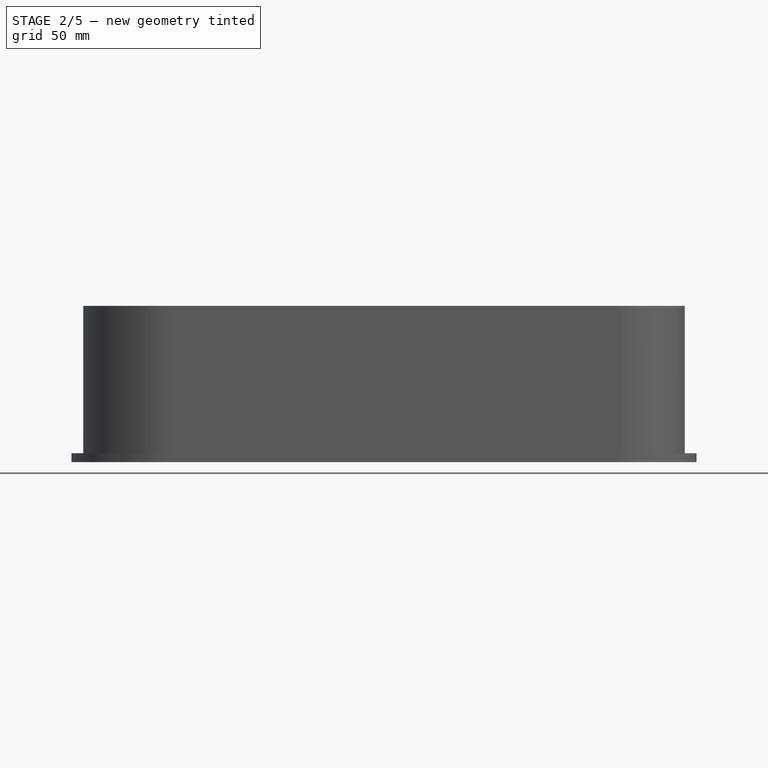
[diagram: stage 2 of 5 — front view after this stage's code; geometry added in this stage tinted green]
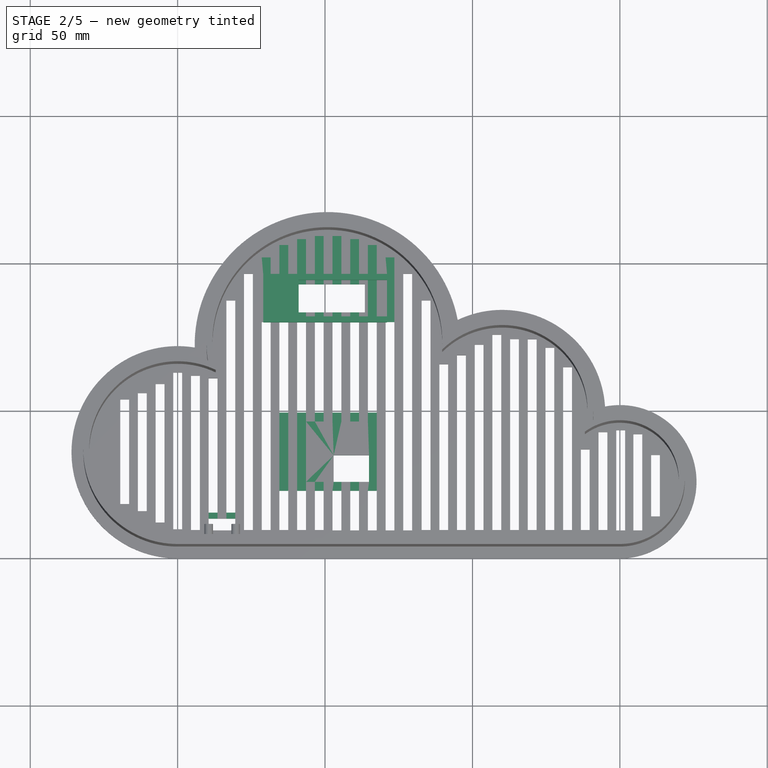
[diagram: stage 2 of 5 — top view after this stage's code; geometry added in this stage tinted green]
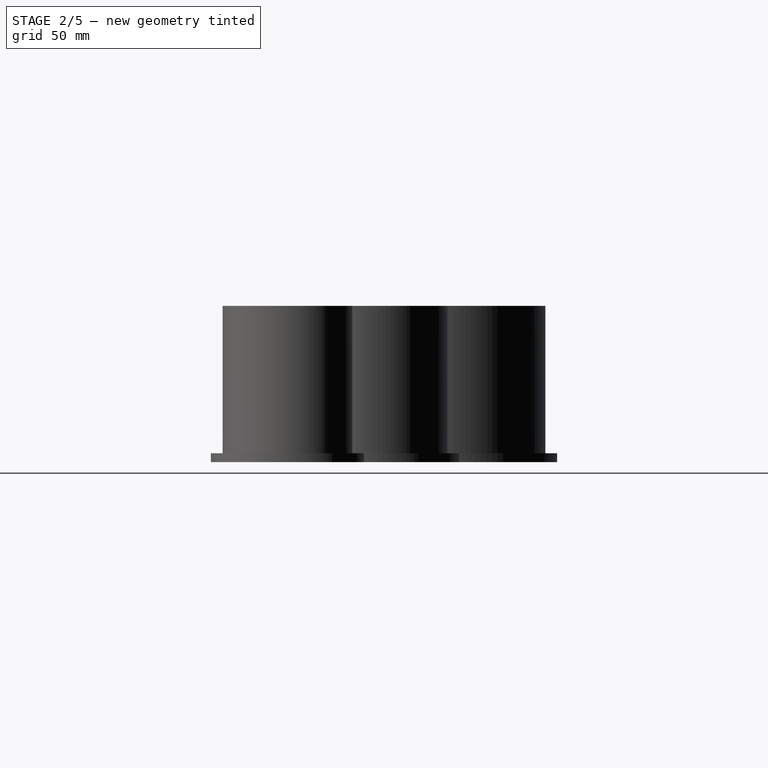
[diagram: stage 2 of 5 — right view after this stage's code; geometry added in this stage tinted green]
FEATURE [Sketcher::SketchObject] Sketch011
  ExternalGeometry = -> [Sketch010]
  MapMode = 5
  Placement = pos=(0,0,3) rot=(0,0,1;0rad)
  Support = -> [Pocket002]
  sketch-geometry (8):
    g0: LineSegment StartX=8.851 StartY=15.5 StartZ=0 EndX=21.351 EndY=15.5 EndZ=0
    g1: LineSegment StartX=21.351 StartY=15.5 StartZ=0 EndX=21.351 EndY=7.5 EndZ=0
    g2: LineSegment StartX=21.351 StartY=7.5 StartZ=0 EndX=8.851 EndY=7.5 EndZ=0
    g3: LineSegment StartX=8.851 StartY=7.5 StartZ=0 EndX=8.851 EndY=15.5 EndZ=0
    g4: LineSegment StartX=10.2513 StartY=13.5 StartZ=0 EndX=20.0068 EndY=13.5 EndZ=0
    g5: LineSegment StartX=20.0068 StartY=13.5 StartZ=0 EndX=20.0068 EndY=9.5 EndZ=0
    g6: LineSegment StartX=20.0068 StartY=9.5 StartZ=0 EndX=10.2513 EndY=9.5 EndZ=0
    g7: LineSegment StartX=10.2513 StartY=9.5 StartZ=0 EndX=10.2513 EndY=13.5 EndZ=0
  constraints (22):
    c: Coincident(g0,g1)
    c: Coincident(g1,g2)
    c: Coincident(g2,g3)
    c: Coincident(g3,g0)
    c: Horizontal(g0)
    c: Horizontal(g2)
    c: Vertical(g1)
    c: Vertical(g3)
    c: DistanceY(g-5,g0) = 2
    c: DistanceX(g0,g-5) = 2
    c: DistanceY(g1,g-6) = 2
    c: DistanceX(g-6,g1) = 2
    c: Coincident(g4,g5)
    c: Coincident(g5,g6)
    c: Coincident(g6,g7)
    c: Coincident(g7,g4)
    c: Horizontal(g4)
    c: Horizontal(g6)
    c: Vertical(g5)
    c: Vertical(g7)
    c: Horizontal(g-6,g4)
    c: Horizontal(g5,g-6)
FEATURE [PartDesign::Pad] Pad008
  BaseFeature = -> Pocket002
  Direction = (1,1,1)
  Length = 10
  Length2 = 100
  Profile = -> Sketch011
  Reversed = true
  Type = 3
  UpToFace = -> Pocket002 [Face4]
FEATURE [Sketcher::SketchObject] Sketch012
  ExternalGeometry = -> [Sketch002]
  MapMode = 5
  Placement = pos=(0,0,3) rot=(0,0,1;0rad)
  Support = -> [Pad008]
  expr: Constraints[20] = (16 - 9.5) / 2
  sketch-geometry (8):
    g0: LineSegment StartX=38.53 StartY=92.9507 StartZ=0 EndX=63.53 EndY=92.9507 EndZ=0
    g1: LineSegment StartX=63.53 StartY=92.9507 StartZ=0 EndX=63.53 EndY=83.4507 EndZ=0
    g2: LineSegment StartX=63.53 StartY=83.4507 StartZ=0 EndX=38.53 EndY=83.4507 EndZ=0
    g3: LineSegment StartX=38.53 StartY=83.4507 StartZ=0 EndX=38.53 EndY=92.9507 EndZ=0
    g4: LineSegment [constr] StartX=27.53 StartY=96.2007 StartZ=0 EndX=74.53 EndY=96.2007 EndZ=0
    g5: LineSegment [constr] StartX=74.53 StartY=96.2007 StartZ=0 EndX=74.53 EndY=80.2007 EndZ=0
    g6: LineSegment [constr] StartX=74.53 StartY=80.2007 StartZ=0 EndX=27.53 EndY=80.2007 EndZ=0
    g7: LineSegment [constr] StartX=27.53 StartY=80.2007 StartZ=0 EndX=27.53 EndY=96.2007 EndZ=0
  constraints (21):
    c: Coincident(g0,g1)
    c: Coincident(g1,g2)
    c: Coincident(g2,g3)
    c: Coincident(g3,g0)
    c: Horizontal(g2)
    c: Vertical(g1)
    c: Vertical(g3)
    c: DistanceX(g0,g0) = 25
    c: Symmetric(g0,g0,g-3)
    c: DistanceY(g1,g1) = 9.5
    c: Coincident(g4,g5)
    c: Coincident(g5,g6)
    c: Coincident(g6,g7)
    c: Coincident(g7,g4)
    c: Horizontal(g6)
    c: Vertical(g5)
    c: Vertical(g7)
    c: DistanceX(g4,g4) = 47
    c: Symmetric(g4,g4,g-3)
    c: DistanceY(g7,g7) = 16
    c: DistanceY(g0,g4) = 3.25
FEATURE [PartDesign::Pocket] Pocket003
  BaseFeature = -> Pad008
  Length = 3
  Length2 = 100
  Profile = -> Sketch012
  Type = 0
FEATURE [Sketcher::SketchObject] Sketch013
  ExternalGeometry = -> [Sketch012]
  MapMode = 5
  Placement = pos=(0,0,3) rot=(0,0,1;0rad)
  Support = -> [Pocket003]
  sketch-geometry (15):
    g0: LineSegment StartX=74.53 StartY=96.2007 StartZ=0 EndX=74.53 EndY=80.2007 EndZ=0
    g1: LineSegment StartX=74.53 StartY=80.2007 StartZ=0 EndX=27.53 EndY=80.2007 EndZ=0
    g2: LineSegment StartX=27.53 StartY=80.2007 StartZ=0 EndX=27.53 EndY=96.2007 EndZ=0
    g3: LineSegment [constr] StartX=51.03 StartY=92.9507 StartZ=0 EndX=51.03 EndY=79.5025 EndZ=0
    g4: LineSegment [constr] StartX=25.7255 StartY=88.2007 StartZ=0 EndX=69.1063 EndY=88.2007 EndZ=0
    g5: LineSegment StartX=38.53 StartY=92.9507 StartZ=0 EndX=63.53 EndY=92.9507 EndZ=0
    g6: LineSegment StartX=63.53 StartY=92.9507 StartZ=0 EndX=63.53 EndY=83.4507 EndZ=0
    g7: LineSegment StartX=63.53 StartY=83.4507 StartZ=0 EndX=38.53 EndY=83.4507 EndZ=0
    g8: LineSegment StartX=38.53 StartY=83.4507 StartZ=0 EndX=38.53 EndY=92.9507 EndZ=0
    g9: LineSegment StartX=27.53 StartY=96.2007 StartZ=0 EndX=27.53 EndY=102.543 EndZ=0
    g10: LineSegment StartX=27.53 StartY=102.543 StartZ=0 EndX=36.6478 EndY=108.153 EndZ=0
    g11: LineSegment StartX=36.6478 StartY=108.153 StartZ=0 EndX=47.9753 EndY=112.282 EndZ=0
    g12: LineSegment StartX=47.9753 StartY=112.282 StartZ=0 EndX=69.8894 EndY=107.412 EndZ=0
    g13: LineSegment StartX=69.8894 StartY=107.412 StartZ=0 EndX=74.53 EndY=102.543 EndZ=0
    g14: LineSegment StartX=74.53 StartY=102.543 StartZ=0 EndX=74.53 EndY=96.2007 EndZ=0
  constraints (29):
    c: Coincident(g0,g1)
    c: Coincident(g1,g2)
    c: Horizontal(g1)
    c: Vertical(g0)
    c: DistanceX(g2,g0) = 47
    c: Symmetric(g-5,g-6,g3)
    c: Symmetric(g0,g2,g3)
    c: DistanceY(g0,g0) = 16
    c: Symmetric(g-5,g-5,g4)
    c: Symmetric(g2,g1,g4)
    c: Coincident(g5,g6)
    c: Coincident(g6,g7)
    c: Coincident(g7,g8)
    c: Coincident(g8,g5)
    c: Horizontal(g5)
    c: Horizontal(g7)
    c: Vertical(g6)
    c: Vertical(g8)
    c: Coincident(g5,g-5)
    c: Coincident(g6,g-6)
    c: Coincident(g9,g2)
    c: Vertical(g9)
    c: Coincident(g10,g9)
    c: Coincident(g11,g10)
    c: Coincident(g12,g11)
    c: Coincident(g13,g12)
    c: Coincident(g14,g0)
    c: Vertical(g14)
    c: Coincident(g13,g14)
FEATURE [PartDesign::Pad] Pad009
  BaseFeature = -> Pocket003
  Direction = (1,1,1)
  Length = 10
  Length2 = 100
  Profile = -> Sketch013
  Type = 3
  UpToFace = -> Pocket003 [Face4]
FEATURE [Sketcher::SketchObject] Sketch014
  ExternalGeometry = -> [Sketch013]
  MapMode = 5
  Placement = pos=(0,0,3) rot=(0,0,1;0rad)
  Support = -> [Pad009]
  sketch-geometry (12):
    g0: LineSegment StartX=31.03 StartY=94.4007 StartZ=0 EndX=71.03 EndY=94.4007 EndZ=0
    g1: LineSegment [constr] StartX=71.03 StartY=94.4007 StartZ=0 EndX=71.03 EndY=82.0007 EndZ=0
    g2: LineSegment StartX=71.03 StartY=82.0007 StartZ=0 EndX=31.03 EndY=82.0007 EndZ=0
    g3: LineSegment StartX=31.03 StartY=82.0007 StartZ=0 EndX=31.03 EndY=94.4007 EndZ=0
    g4: LineSegment [constr] StartX=51.03 StartY=99.3442 StartZ=0 EndX=51.03 EndY=81.2748 EndZ=0
    g5: LineSegment [constr] StartX=34.4748 StartY=88.2007 StartZ=0 EndX=66.4878 EndY=88.2007 EndZ=0
    g6: LineSegment StartX=29.03 StartY=96.4007 StartZ=0 EndX=71.03 EndY=96.4007 EndZ=0
    g7: LineSegment [constr] StartX=71.03 StartY=96.4007 StartZ=0 EndX=71.03 EndY=80.0007 EndZ=0
    g8: LineSegment StartX=71.03 StartY=80.0007 StartZ=0 EndX=29.03 EndY=80.0007 EndZ=0
    g9: LineSegment StartX=29.03 StartY=80.0007 StartZ=0 EndX=29.03 EndY=96.4007 EndZ=0
    g10: LineSegment StartX=71.03 StartY=96.4007 StartZ=0 EndX=71.03 EndY=94.4007 EndZ=0
    g11: LineSegment StartX=71.03 StartY=82.0007 StartZ=0 EndX=71.03 EndY=80.0007 EndZ=0
  constraints (28):
    c: Coincident(g0,g1)
    c: Coincident(g1,g2)
    c: Coincident(g2,g3)
    c: Coincident(g3,g0)
    c: Horizontal(g2)
    c: Vertical(g1)
    c: DistanceX(g0,g0) = 40
    c: Symmetric(g-4,g-6,g4)
    c: Symmetric(g0,g0,g4)
    c: DistanceY(g3,g3) = 12.4
    c: Symmetric(g-6,g-6,g5)
    c: Symmetric(g0,g2,g5)
    c: Coincident(g6,g7)
    c: Coincident(g7,g8)
    c: Coincident(g8,g9)
    c: Coincident(g9,g6)
    c: Horizontal(g6)
    c: Horizontal(g8)
    c: Vertical(g7)
    c: Vertical(g9)
    c: Vertical(g6,g0)
    c: DistanceY(g0,g6) = 2
    c: DistanceX(g6,g0) = 2
    c: DistanceY(g8,g2) = 2
    c: Coincident(g10,g6)
    c: Coincident(g10,g0)
    c: Coincident(g11,g2)
    c: Coincident(g11,g8)
FEATURE [PartDesign::Pad] Pad010
  BaseFeature = -> Pad009
  Direction = (1,1,1)
  Length = 5
  Length2 = 100
  Profile = -> Sketch014
  Type = 0
FEATURE [Sketcher::SketchObject] Sketch015
  ExternalGeometry = -> [Pad010]
  MapMode = 5
  Placement = pos=(31.03,0,0) rot=(0.57735,0.57735,0.57735;2.0944rad)
  Support = -> [Pad010]
  sketch-geometry (4):
    g0: LineSegment StartX=82.0007 StartY=8 StartZ=0 EndX=94.4007 EndY=8 EndZ=0
    g1: LineSegment StartX=94.4007 StartY=8 StartZ=0 EndX=94.4007 EndY=6.1 EndZ=0
    g2: LineSegment StartX=94.4007 StartY=6.1 StartZ=0 EndX=82.0007 EndY=6.1 EndZ=0
    g3: LineSegment StartX=82.0007 StartY=6.1 StartZ=0 EndX=82.0007 EndY=8 EndZ=0
  constraints (10):
    c: Coincident(g0,g1)
    c: Coincident(g1,g2)
    c: Coincident(g2,g3)
    c: Coincident(g3,g0)
    c: Horizontal(g2)
    c: Vertical(g1)
    c: Vertical(g3)
    c: Coincident(g0,g-3)
    c: Coincident(g0,g-3)
    c: DistanceY(g1,g1) = 1.9
FEATURE [PartDesign::Pad] Pad011
  BaseFeature = -> Pad010
  Direction = (1,1,1)
  Length = 10
  Length2 = 100
  Profile = -> Sketch015
  Type = 0
FEATURE [Sketcher::SketchObject] Sketch016
  ExternalGeometry = -> [Pad012]
  MapMode = 5
  Placement = pos=(0,0,3) rot=(0,0,1;0rad)
  Support = -> [Pad012]
  sketch-geometry (10):
    g0: ArcOfCircle CenterX=0 CenterY=36 CenterZ=0 NormalX=0 NormalY=0 NormalZ=1 AngleXU=0 Radius=32 StartAngle=1.2448 EndAngle=4.71239
    g1: ArcOfCircle CenterX=50.7826 CenterY=72.4746 CenterZ=0 NormalX=0 NormalY=0 NormalZ=1 AngleXU=0 Radius=41 StartAngle=0.0448414 EndAngle=3.29241
    g2: ArcOfCircle CenterX=110.043 CenterY=49.2918 CenterZ=0 NormalX=0 NormalY=0 NormalZ=1 AngleXU=0 Radius=31 StartAngle=6.17732 EndAngle=8.48552
    g3: ArcOfCircle CenterX=150 CenterY=26 CenterZ=0 NormalX=0 NormalY=0 NormalZ=1 AngleXU=0 Radius=22 StartAngle=4.71239 EndAngle=8.28193
    g4: LineSegment StartX=1.335e-07 StartY=4 StartZ=0 EndX=150 EndY=4 EndZ=0
    g5: ArcOfCircle CenterX=0 CenterY=36 CenterZ=0 NormalX=0 NormalY=0 NormalZ=1 AngleXU=0 Radius=30 StartAngle=1.12505 EndAngle=4.71239
    g6: ArcOfCircle CenterX=50.7826 CenterY=72.4746 CenterZ=0 NormalX=0 NormalY=0 NormalZ=1 AngleXU=0 Radius=39 StartAngle=6.21868 EndAngle=9.66836
    g7: ArcOfCircle CenterX=110.043 CenterY=49.2918 CenterZ=0 NormalX=0 NormalY=0 NormalZ=1 AngleXU=0 Radius=29 StartAngle=6.03268 EndAngle=8.6314
    g8: ArcOfCircle CenterX=150 CenterY=26 CenterZ=0 NormalX=0 NormalY=0 NormalZ=1 AngleXU=0 Radius=20 StartAngle=4.71239 EndAngle=8.48887
    g9: LineSegment StartX=1.335e-07 StartY=6 StartZ=0 EndX=150 EndY=6 EndZ=0
  constraints (34):
    c: Radius(g-7) = 36
    c: Coincident(g0,g-7)
    c: Coincident(g1,g-3)
    c: Coincident(g2,g-4)
    c: Coincident(g3,g-5)
    c: Horizontal(g4)
    c: Radius(g0) = 32
    c: Radius(g-3) = 45
    c: Radius(g-4) = 35
    c: Radius(g-5) = 26
    c: Radius(g1) = 41
    c: Radius(g2) = 31
    c: Radius(g3) = 22
    c: Vertical(g4,g-6)
    c: Coincident(g0,g4)
    c: Coincident(g1,g0)
    c: Coincident(g2,g1)
    c: Coincident(g3,g2)
    c: Coincident(g5,g0)
    c: Coincident(g6,g1)
    c: Coincident(g7,g2)
    c: Coincident(g8,g3)
    c: Radius(g7) = 29
    c: Radius(g6) = 39
    c: Radius(g5) = 30
    c: Horizontal(g9)
    c: Vertical(g9,g3)
    c: Vertical(g9,g0)
    c: Coincident(g5,g9)
    c: Coincident(g6,g5)
    c: Coincident(g6,g7)
    c: Coincident(g8,g7)
    c: Coincident(g4,g3)
    c: Coincident(g8,g9)
FEATURE [PartDesign::Body] Body003
  Group = -> [Pad012,Sketch017,Sketch016]
  Origin = -> Origin003
  Tip = -> Pad012
FEATURE [Sketcher::SketchObject] Sketch018
  MapMode = 5
  Placement = pos=(0,0,3) rot=(0,0,1;0rad)
  Support = -> [Pad011]
  sketch-geometry (4):
    g0: LineSegment StartX=36.9252 StartY=25.9451 StartZ=0 EndX=64.9252 EndY=25.9451 EndZ=0
    g1: LineSegment StartX=64.9252 StartY=25.9451 StartZ=0 EndX=64.9252 EndY=46.4451 EndZ=0
    g2: LineSegment StartX=64.9252 StartY=46.4451 StartZ=0 EndX=36.9252 EndY=46.4451 EndZ=0
    g3: LineSegment StartX=36.9252 StartY=46.4451 StartZ=0 EndX=36.9252 EndY=25.9451 EndZ=0
  constraints (10):
    c: Coincident(g0,g1)
    c: Coincident(g1,g2)
    c: Coincident(g2,g3)
    c: Coincident(g3,g0)
    c: Horizontal(g0)
    c: Horizontal(g2)
    c: Vertical(g1)
    c: Vertical(g3)
    c: DistanceX(g2,g2) = 28
    c: DistanceY(g3,g3) = 20.5
FEATURE [PartDesign::Pocket] Pocket004
  BaseFeature = -> Pad011
  Length = 5
  Length2 = 100
  Profile = -> Sketch018
  Type = 0
FEATURE [Sketcher::SketchObject] Sketch019
  ExternalGeometry = -> [Sketch018]
  MapMode = 5
  Placement = pos=(0,0,3) rot=(0,0,1;0rad)
  Support = -> [Pocket004]
  sketch-geometry (8):
    g0: LineSegment StartX=64.9252 StartY=25.9451 StartZ=0 EndX=52.9252 EndY=25.9451 EndZ=0
    g1: LineSegment StartX=52.9252 StartY=25.9451 StartZ=0 EndX=52.9252 EndY=34.9451 EndZ=0
    g2: LineSegment StartX=52.9252 StartY=34.9451 StartZ=0 EndX=64.9252 EndY=34.9451 EndZ=0
    g3: LineSegment StartX=64.9252 StartY=34.9451 StartZ=0 EndX=64.9252 EndY=25.9451 EndZ=0
    g4: LineSegment StartX=33.9252 StartY=49.4451 StartZ=0 EndX=67.9252 EndY=49.4451 EndZ=0
    g5: LineSegment StartX=67.9252 StartY=49.4451 StartZ=0 EndX=67.9252 EndY=22.9451 EndZ=0
    g6: LineSegment StartX=67.9252 StartY=22.9451 StartZ=0 EndX=33.9252 EndY=22.9451 EndZ=0
    g7: LineSegment StartX=33.9252 StartY=22.9451 StartZ=0 EndX=33.9252 EndY=49.4451 EndZ=0
  constraints (23):
    c: Coincident(g0,g1)
    c: Coincident(g1,g2)
    c: Coincident(g2,g3)
    c: Coincident(g3,g0)
    c: Horizontal(g0)
    c: Horizontal(g2)
    c: Vertical(g1)
    c: Vertical(g3)
    c: Coincident(g0,g-5)
    c: DistanceX(g2,g2) = 12
    c: DistanceY(g1,g1) = 9
    c: Coincident(g4,g5)
    c: Coincident(g5,g6)
    c: Coincident(g6,g7)
    c: Coincident(g7,g4)
    c: Horizontal(g4)
    c: Horizontal(g6)
    c: Vertical(g5)
    c: Vertical(g7)
    c: DistanceY(g-6,g4) = 3
    c: DistanceY(g6,g-6) = 3
    c: DistanceX(g0,g5) = 3
    c: DistanceX(g6,g-6) = 3
FEATURE [PartDesign::Pad] Pad013
  BaseFeature = -> Pocket004
  Direction = (1,1,1)
  Length = 10
  Length2 = 100
  Profile = -> Sketch019
  Type = 3
  UpToFace = -> Pocket004 [Face4]
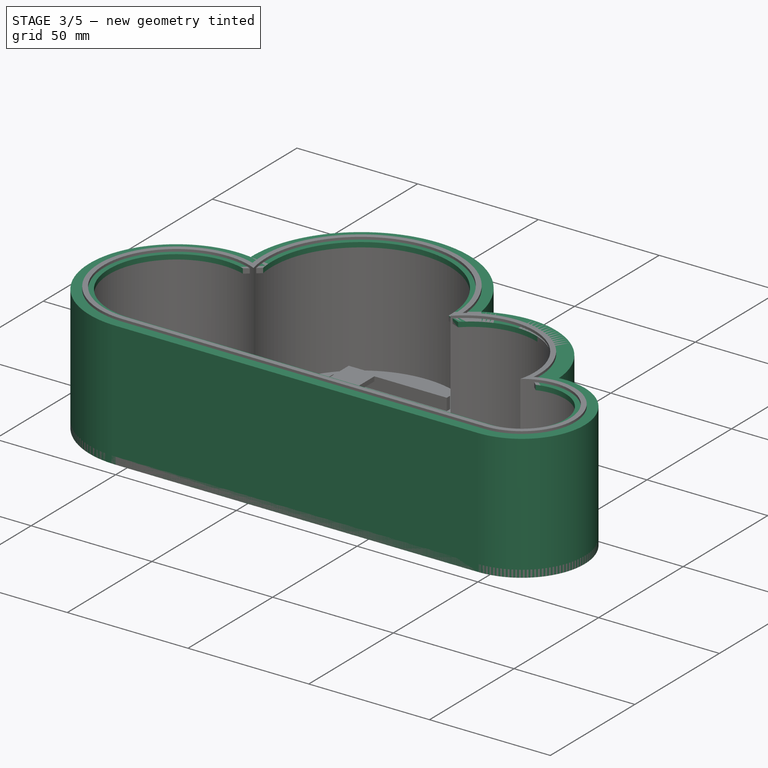
[diagram: stage 3 of 5 — iso view after this stage's code; geometry added in this stage tinted green]
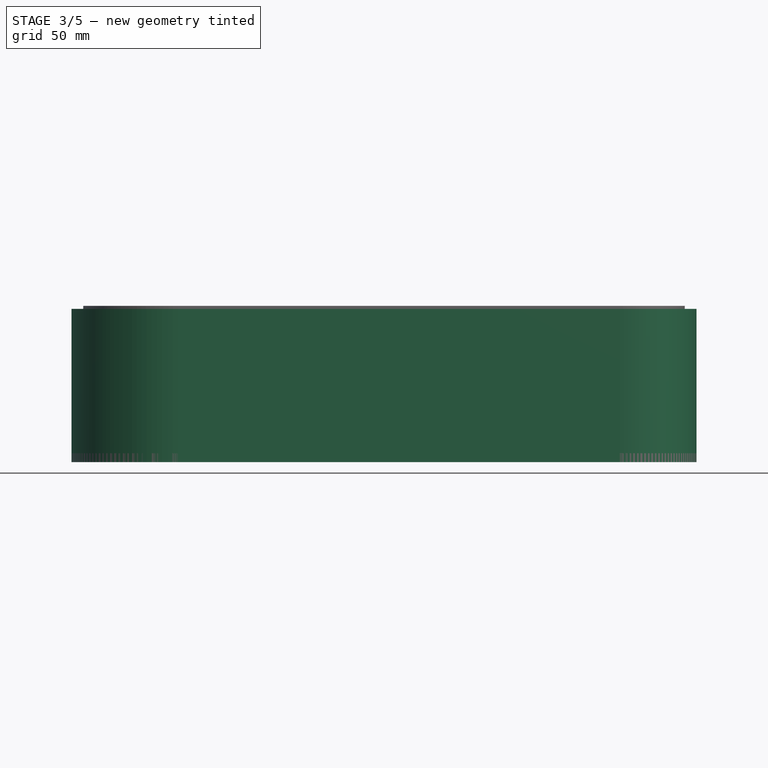
[diagram: stage 3 of 5 — front view after this stage's code; geometry added in this stage tinted green]
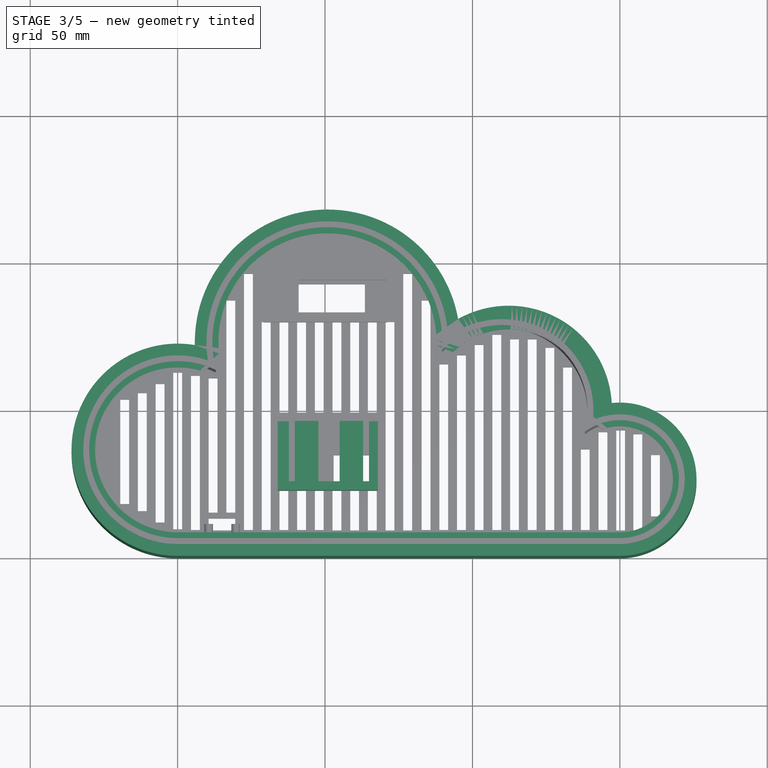
[diagram: stage 3 of 5 — top view after this stage's code; geometry added in this stage tinted green]
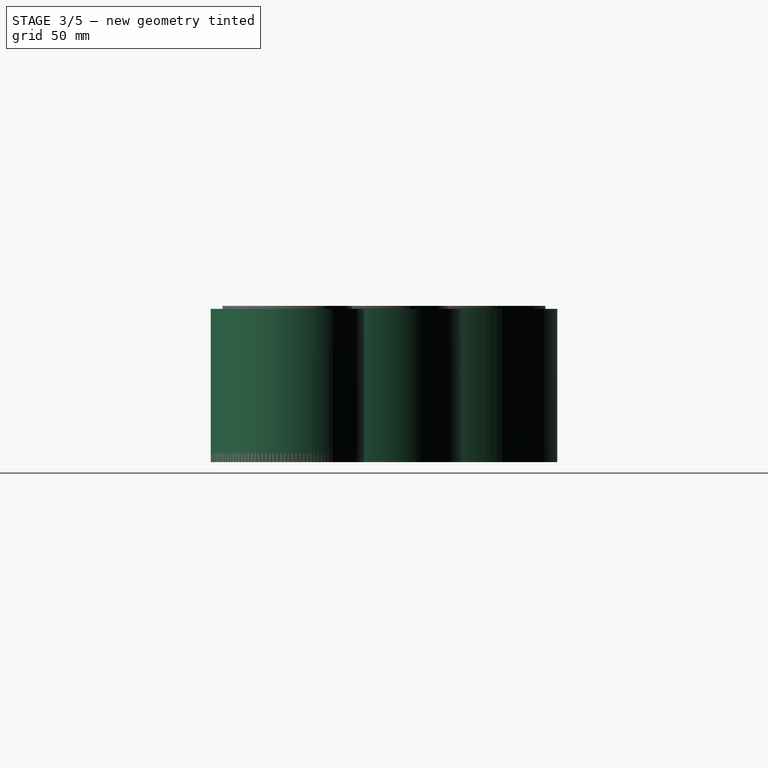
[diagram: stage 3 of 5 — right view after this stage's code; geometry added in this stage tinted green]
FEATURE [Sketcher::SketchObject] Sketch020
  ExternalGeometry = -> [Sketch018]
  MapMode = 5
  Placement = pos=(0,0,3) rot=(0,0,1;0rad)
  Support = -> [Pad013]
  expr: Constraints[1] = Sketch018.Constraints[9]
  sketch-geometry (8):
    g0: LineSegment StartX=37.7252 StartY=46.4451 StartZ=0 EndX=37.7252 EndY=25.9451 EndZ=0
    g1: LineSegment StartX=67.9252 StartY=46.4451 StartZ=0 EndX=67.9252 EndY=22.95 EndZ=0
    g2: LineSegment StartX=67.9252 StartY=22.95 StartZ=0 EndX=33.9252 EndY=22.95 EndZ=0
    g3: LineSegment StartX=33.9252 StartY=22.95 StartZ=0 EndX=33.9252 EndY=46.4451 EndZ=0
    g4: LineSegment StartX=64.9252 StartY=46.4451 StartZ=0 EndX=67.9252 EndY=46.4451 EndZ=0
    g5: LineSegment StartX=33.9252 StartY=46.4451 StartZ=0 EndX=37.7252 EndY=46.4451 EndZ=0
    g6: LineSegment StartX=37.7252 StartY=25.9451 StartZ=0 EndX=64.9252 EndY=25.9451 EndZ=0
    g7: LineSegment StartX=64.9252 StartY=25.9451 StartZ=0 EndX=64.9252 EndY=46.4451 EndZ=0
  constraints (23):
    c: Vertical(g0)
    c: DistanceY(g0,g0) = 20.5
    c: Coincident(g1,g2)
    c: Coincident(g2,g3)
    c: Horizontal(g2)
    c: Vertical(g1)
    c: Vertical(g3)
    c: Horizontal(g3,g0)
    c: Horizontal(g1,g4)
    c: Coincident(g4,g1)
    c: Coincident(g5,g3)
    c: Coincident(g6,g0)
    c: Horizontal(g6)
    c: Coincident(g7,g6)
    c: Coincident(g7,g4)
    c: Vertical(g7)
    c: DistanceX(g6,g1) = 3
    c: DistanceX(g2) = 33.9252
    c: DistanceY(g-1,g2) = 22.95
    c: DistanceX(g2,g0) = 3.8
    c: Coincident(g4,g-3)
    c: Horizontal(g0,g-4)
    c: Coincident(g5,g0)
FEATURE [PartDesign::Pad] Pad014
  BaseFeature = -> Pad013
  Direction = (1,1,1)
  Length = 12
  Length2 = 100
  Profile = -> Sketch020
  Type = 0
FEATURE [Sketcher::SketchObject] Sketch021
  ExternalGeometry = -> [Pad014]
  MapMode = 5
  Placement = pos=(0,25.9451,0) rot=(0,0.707107,0.707107;3.14159rad)
  Support = -> [Pad014]
  sketch-geometry (8):
    g0: LineSegment StartX=-54.9252 StartY=15 StartZ=0 EndX=-62.9252 EndY=15 EndZ=0
    g1: LineSegment StartX=-62.9252 StartY=15 StartZ=0 EndX=-62.9252 EndY=13 EndZ=0
    g2: LineSegment StartX=-62.9252 StartY=13 StartZ=0 EndX=-54.9252 EndY=13 EndZ=0
    g3: LineSegment StartX=-54.9252 StartY=13 StartZ=0 EndX=-54.9252 EndY=15 EndZ=0
    g4: LineSegment StartX=-47.7252 StartY=15 StartZ=0 EndX=-39.7252 EndY=15 EndZ=0
    g5: LineSegment StartX=-39.7252 StartY=15 StartZ=0 EndX=-39.7252 EndY=13 EndZ=0
    g6: LineSegment StartX=-39.7252 StartY=13 StartZ=0 EndX=-47.7252 EndY=13 EndZ=0
    g7: LineSegment StartX=-47.7252 StartY=13 StartZ=0 EndX=-47.7252 EndY=15 EndZ=0
  constraints (24):
    c: Coincident(g0,g1)
    c: Coincident(g1,g2)
    c: Coincident(g2,g3)
    c: Coincident(g3,g0)
    c: Horizontal(g0)
    c: Horizontal(g2)
    c: Vertical(g1)
    c: Vertical(g3)
    c: DistanceY(g1,g1) = 2
    c: DistanceX(g0,g0) = 8
    c: Horizontal(g0,g-3)
    c: DistanceX(g-3,g0) = 2
    c: Coincident(g4,g5)
    c: Coincident(g5,g6)
    c: Coincident(g6,g7)
    c: Coincident(g7,g4)
    c: Horizontal(g4)
    c: Horizontal(g6)
    c: Vertical(g5)
    c: Vertical(g7)
    c: DistanceX(g4,g4) = 8
    c: DistanceY(g7,g7) = 2
    c: Horizontal(g-3,g4)
    c: DistanceX(g4,g-3) = 2
FEATURE [Sketcher::SketchObject] Sketch022
  MapMode = 5
  Placement = pos=(67.9252,0,0) rot=(0.57735,0.57735,0.57735;2.0944rad)
  sketch-geometry (4):
    g0: LineSegment StartX=25.9451 StartY=15.9507 StartZ=0 EndX=47.5836 EndY=15.9507 EndZ=0
    g1: LineSegment StartX=47.5836 StartY=15.9507 StartZ=0 EndX=47.5836 EndY=7.5 EndZ=0
    g2: LineSegment StartX=47.5836 StartY=7.5 StartZ=0 EndX=25.9451 EndY=7.5 EndZ=0
    g3: LineSegment StartX=25.9451 StartY=7.5 StartZ=0 EndX=25.9451 EndY=15.9507 EndZ=0
  constraints (8):
    c: Coincident(g0,g1)
    c: Coincident(g1,g2)
    c: Coincident(g2,g3)
    c: Coincident(g3,g0)
    c: Horizontal(g0)
    c: Horizontal(g2)
    c: Vertical(g1)
    c: Vertical(g3)
FEATURE [Sketcher::SketchObject] Sketch023
  MapMode = 5
  Placement = pos=(33.9252,0,0) rot=(0.57735,-0.57735,-0.57735;2.0944rad)
  sketch-geometry (4):
    g0: LineSegment StartX=-25.9451 StartY=15.9162 StartZ=0 EndX=-47.4531 EndY=15.9162 EndZ=0
    g1: LineSegment StartX=-47.4531 StartY=15.9162 StartZ=0 EndX=-47.4531 EndY=7.5 EndZ=0
    g2: LineSegment StartX=-47.4531 StartY=7.5 StartZ=0 EndX=-25.9451 EndY=7.5 EndZ=0
    g3: LineSegment StartX=-25.9451 StartY=7.5 StartZ=0 EndX=-25.9451 EndY=15.9162 EndZ=0
  constraints (8):
    c: Coincident(g0,g1)
    c: Coincident(g1,g2)
    c: Coincident(g2,g3)
    c: Coincident(g3,g0)
    c: Horizontal(g0)
    c: Horizontal(g2)
    c: Vertical(g1)
    c: Vertical(g3)
FEATURE [Sketcher::SketchObject] Sketch024
  MapMode = 5
  Support = -> [XY_Plane005]
  sketch-geometry (10):
    g0: LineSegment StartX=0 StartY=0 StartZ=0 EndX=150 EndY=0 EndZ=0
    g1: ArcOfCircle CenterX=0 CenterY=36 CenterZ=0 NormalX=0 NormalY=0 NormalZ=1 AngleXU=0 Radius=36 StartAngle=1.40784 EndAngle=4.71239
    g2: ArcOfCircle CenterX=150 CenterY=26 CenterZ=0 NormalX=0 NormalY=0 NormalZ=1 AngleXU=0 Radius=26 StartAngle=4.71239 EndAngle=7.96004
    g3: ArcOfCircle CenterX=50.83 CenterY=72.4919 CenterZ=0 NormalX=0 NormalY=0 NormalZ=1 AngleXU=0 Radius=45 StartAngle=0.17586 EndAngle=3.16312
    g4: ArcOfCircle CenterX=112.304 CenterY=49.8648 CenterZ=0 NormalX=0 NormalY=0 NormalZ=1 AngleXU=0 Radius=35 StartAngle=0.0568613 EndAngle=2.08348
    g5: ArcOfCircle CenterX=50.83 CenterY=72.4919 CenterZ=0 NormalX=0 NormalY=0 NormalZ=1 AngleXU=0 Radius=41.8 StartAngle=0.0551963 EndAngle=3.26267
    g6: ArcOfCircle CenterX=112.304 CenterY=49.8648 CenterZ=0 NormalX=0 NormalY=0 NormalZ=1 AngleXU=0 Radius=31.8 StartAngle=6.22482 EndAngle=8.5236
    g7: ArcOfCircle CenterX=150 CenterY=26 CenterZ=0 NormalX=0 NormalY=0 NormalZ=1 AngleXU=0 Radius=22.8 StartAngle=4.71239 EndAngle=8.118
    g8: ArcOfCircle CenterX=0 CenterY=36 CenterZ=0 NormalX=0 NormalY=0 NormalZ=1 AngleXU=0 Radius=32.8 StartAngle=1.28217 EndAngle=4.71239
    g9: LineSegment StartX=0 StartY=3.2 StartZ=0 EndX=150 EndY=3.2 EndZ=0
  constraints (33):
    c: Radius(g1) = 36
    c: Radius(g3) = 45
    c: Radius(g4) = 35
    c: Radius(g2) = 26
    c: Coincident(g2,g0)
    c: DistanceX(g3) = 50.83
    c: DistanceY(g3) = 72.4919
    c: Coincident(g5,g3)
    c: Radius(g5) = 41.8
    c: DistanceX(g4) = 112.304
    c: DistanceY(g4) = 49.8648
    c: Coincident(g6,g4)
    c: Radius(g6) = 31.8
    c: Coincident(g5,g6)
    c: Coincident(g7,g2)
    c: Radius(g7) = 22.8
    c: Coincident(g6,g7)
    c: Coincident(g8,g1)
    c: Coincident(g8,g5)
    c: Radius(g8) = 32.8
    c: Vertical(g9,g0)
    c: Coincident(g9,g8)
    c: Coincident(g9,g7)
    c: Vertical(g0,g7)
    c: Horizontal(g0)
    c: Coincident(g0,g-1)
    c: Coincident(g1,g3)
    c: Coincident(g4,g3)
    c: Coincident(g4,g2)
    c: DistanceX(g0,g0) = 150
    c: Vertical(g7,g2)
    c: Vertical(g1,g8)
    c: Coincident(g1,g0)
FEATURE [PartDesign::Pad] Pad016
  Direction = (1,1,1)
  Length = 50
  Length2 = 100
  Profile = -> Sketch024
  Type = 0
FEATURE [Sketcher::SketchObject] Sketch025
  MapMode = 5
  Placement = pos=(0,0,50) rot=(0,0,1;0rad)
  Support = -> [Pad016]
  expr: Constraints[0] = Sketch024.Constraints[0]
  expr: Constraints[9] = Sketch024.Constraints[10]
  expr: Constraints[22] = Sketch024.Constraints[29]
  expr: Constraints[3] = Sketch024.Constraints[3]
  expr: Constraints[8] = Sketch024.Constraints[9]
  expr: Constraints[6] = Sketch024.Constraints[6]
  expr: Constraints[5] = Sketch024.Constraints[5]
  expr: Constraints[2] = Sketch024.Constraints[2]
  expr: Constraints[1] = Sketch024.Constraints[1]
  sketch-geometry (13):
    g0: LineSegment StartX=-1.54e-14 StartY=0 StartZ=0 EndX=150 EndY=0 EndZ=0
    g1: ArcOfCircle CenterX=-1.54e-14 CenterY=36 CenterZ=0 NormalX=0 NormalY=0 NormalZ=1 AngleXU=0 Radius=36 StartAngle=1.40784 EndAngle=4.71239
    g2: ArcOfCircle CenterX=150 CenterY=26 CenterZ=0 NormalX=0 NormalY=0 NormalZ=1 AngleXU=0 Radius=26 StartAngle=4.71239 EndAngle=7.96004
    g3: ArcOfCircle CenterX=50.83 CenterY=72.4919 CenterZ=0 NormalX=0 NormalY=0 NormalZ=1 AngleXU=0 Radius=45 StartAngle=0.17586 EndAngle=3.16312
    g4: ArcOfCircle CenterX=112.304 CenterY=49.8648 CenterZ=0 NormalX=0 NormalY=0 NormalZ=1 AngleXU=0 Radius=35 StartAngle=0.0568613 EndAngle=2.08348
    g5: ArcOfCircle CenterX=50.83 CenterY=72.4919 CenterZ=0 NormalX=0 NormalY=0 NormalZ=1 AngleXU=0 Radius=37 StartAngle=6.25482 EndAngle=9.57809
    g6: ArcOfCircle CenterX=112.304 CenterY=49.8648 CenterZ=0 NormalX=0 NormalY=0 NormalZ=1 AngleXU=0 Radius=27 StartAngle=6.18721 EndAngle=8.62991
    g7: ArcOfCircle CenterX=150 CenterY=26 CenterZ=0 NormalX=0 NormalY=0 NormalZ=1 AngleXU=0 Radius=18 StartAngle=4.71239 EndAngle=8.20098
    g8: ArcOfCircle CenterX=-1.54e-14 CenterY=36 CenterZ=0 NormalX=0 NormalY=0 NormalZ=1 AngleXU=0 Radius=28 StartAngle=1.24761 EndAngle=4.71239
    g9: LineSegment StartX=-1.54e-14 StartY=8 StartZ=0 EndX=150 EndY=8 EndZ=0
    g10: LineSegment StartX=8.89256 StartY=62.5504 StartZ=0 EndX=14.264 EndY=66.8416 EndZ=0
    g11: LineSegment StartX=87.8151 StartY=71.4424 StartZ=0 EndX=93.3938 EndY=69.1366 EndZ=0
    g12: LineSegment StartX=139.18 StartY=47.2776 StartZ=0 EndX=143.879 EndY=42.9272 EndZ=0
  constraints (36):
    c: Radius(g1) = 36
    c: Radius(g3) = 45
    c: Radius(g4) = 35
    c: Radius(g2) = 26
    c: Coincident(g2,g0)
    c: DistanceX(g3) = 50.83
    c: DistanceY(g3) = 72.4919
    c: Coincident(g5,g3)
    c: DistanceX(g4) = 112.304
    c: DistanceY(g4) = 49.8648
    c: Coincident(g6,g4)
    c: Coincident(g7,g2)
    c: Coincident(g8,g1)
    c: Vertical(g9,g0)
    c: Coincident(g9,g8)
    c: Coincident(g9,g7)
    c: Vertical(g0,g7)
    c: Horizontal(g0)
    c: Coincident(g0,g-1)
    c: Coincident(g1,g3)
    c: Coincident(g4,g3)
    c: Coincident(g4,g2)
    c: DistanceX(g0,g0) = 150
    c: Vertical(g7,g2)
    c: Vertical(g1,g8)
    c: Coincident(g1,g0)
    c: Radius(g5) = 37
    c: Radius(g8) = 28
    c: Radius(g7) = 18
    c: Radius(g6) = 27
    c: Coincident(g10,g8)
    c: Coincident(g10,g5)
    c: Coincident(g11,g5)
    c: Coincident(g11,g6)
    c: Coincident(g12,g6)
    c: Coincident(g12,g7)
FEATURE [PartDesign::Pad] Pad017
  BaseFeature = -> Pad016
  Direction = (1,1,1)
  Length = 2
  Length2 = 100
  Profile = -> Sketch025
  Type = 0
FEATURE [PartDesign::Body] Body004  label="Frontal"
  Group = -> [Sketch024,Pad016,Sketch025,Pad017,Sketch026,Pad018,Sketch027,Pad019,Fillet,Fillet001,Fillet002]
  Origin = -> Origin004
  Placement = pos=(-11.9045,86.2818,0) rot=(0,0,1;0rad)
  Tip = -> Fillet002
FEATURE [PartDesign::Pocket] Pocket006
  BaseFeature = -> Pad014
  Length = 5
  Length2 = 100
  Profile = -> Sketch023
  Type = 0
FEATURE [PartDesign::Pad] Pad020
  BaseFeature = -> Pocket006
  Direction = (1,1,1)
  Length = 12
  Length2 = 100
  Profile = -> Sketch021
  Type = 3
  UpToFace = -> Pocket006 [Face293]
FEATURE [PartDesign::Pocket] Pocket007
  BaseFeature = -> Pad020
  Length = 5
  Length2 = 100
  Profile = -> Sketch022
  Type = 0
FEATURE [PartDesign::Body] Body  label="Trasera"
  Group = -> [Sketch,Pad,Sketch001,Pad001,Sketch002,Pocket,Sketch008,Pad006,Sketch009,Pad007,Sketch010,Pocket002,Sketch011,Pad008,Sketch012,Pocket003,Sketch013,Pad009,Sketch014,Pad010,Sketch015,Pad011,Sketch018,Pocket004,Sketch019,Pad013,Sketch020,Pad014,Sketch021,Sketch022,Sketch023,Pocket006,Pad020,Pocket007]
  Origin = -> Origin
  Placement = pos=(-11.8648,86.4,-99.4589) rot=(0,0,1;0rad)
  Tip = -> Pocket007
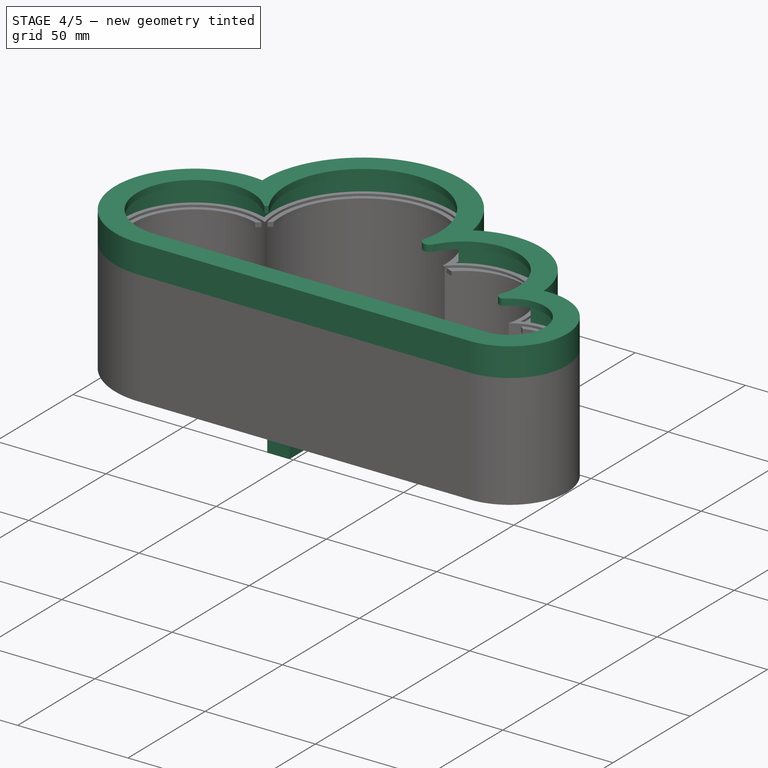
[diagram: stage 4 of 5 — iso view after this stage's code; geometry added in this stage tinted green]
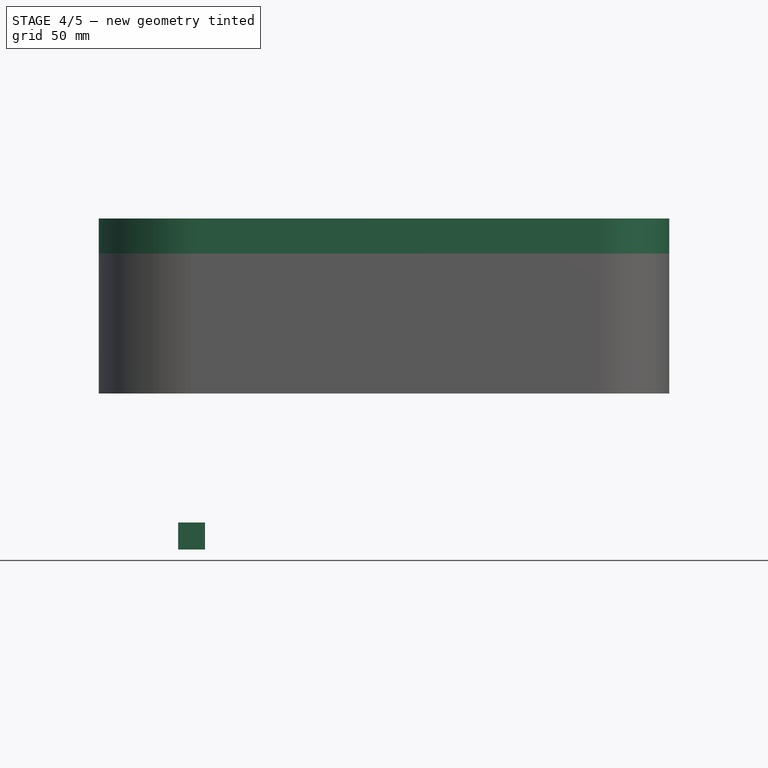
[diagram: stage 4 of 5 — front view after this stage's code; geometry added in this stage tinted green]
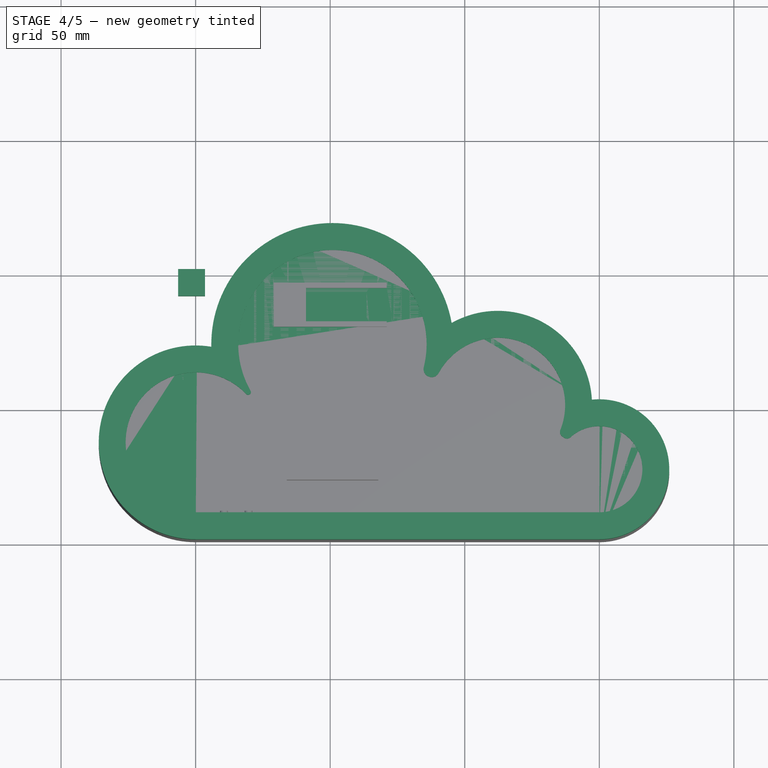
[diagram: stage 4 of 5 — top view after this stage's code; geometry added in this stage tinted green]
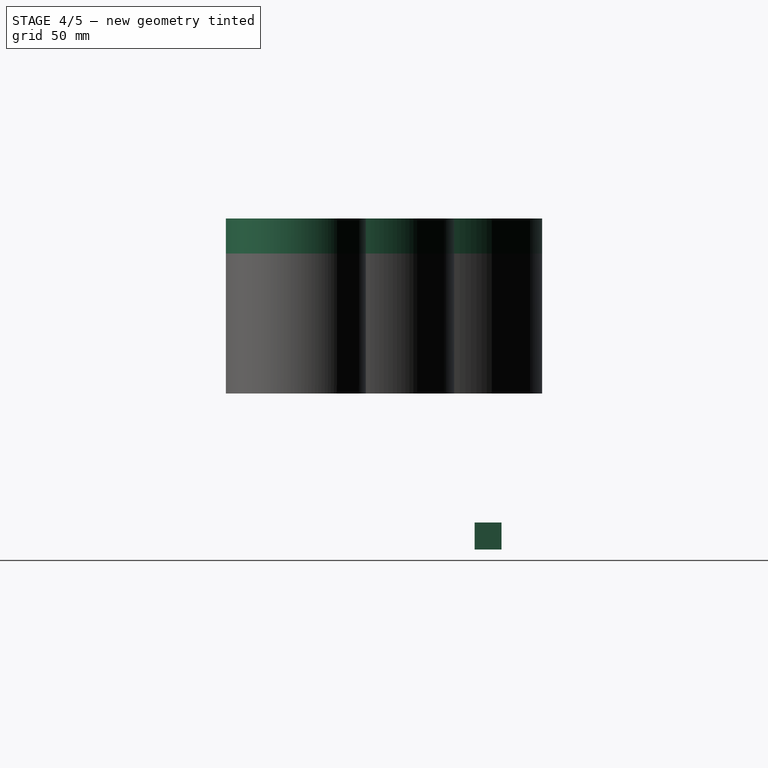
[diagram: stage 4 of 5 — right view after this stage's code; geometry added in this stage tinted green]
FEATURE [Part::Box] Box  label="Cubo"
  AttacherType = Attacher::AttachEngine3D
  Height = 10
  Length = 10
  Placement = pos=(-6.50459,92.4,-57.9589) rot=(0,0,1;0rad)
  Width = 10
FEATURE [Sketcher::SketchObject] Sketch017
  MapMode = 5
  Support = -> [XY_Plane003]
  sketch-geometry (5):
    g0: LineSegment StartX=0 StartY=0 StartZ=0 EndX=150 EndY=0 EndZ=0
    g1: ArcOfCircle CenterX=0 CenterY=36 CenterZ=0 NormalX=0 NormalY=0 NormalZ=1 AngleXU=0 Radius=36 StartAngle=1.40919 EndAngle=4.71239
    g2: ArcOfCircle CenterX=150 CenterY=26 CenterZ=0 NormalX=0 NormalY=0 NormalZ=1 AngleXU=0 Radius=26 StartAngle=4.71239 EndAngle=8.04855
    g3: ArcOfCircle CenterX=50.7826 CenterY=72.4746 CenterZ=0 NormalX=0 NormalY=0 NormalZ=1 AngleXU=0 Radius=45 StartAngle=0.188086 EndAngle=3.16256
    g4: ArcOfCircle CenterX=110.043 CenterY=49.2918 CenterZ=0 NormalX=0 NormalY=0 NormalZ=1 AngleXU=0 Radius=35 StartAngle=0.0634042 EndAngle=2.01543
  constraints (15):
    c: Coincident(g0,g-1)
    c: PointOnObject(g0,g-1)
    c: DistanceX(g0,g0) = 150
    c: Vertical(g1,g0)
    c: Vertical(g2,g0)
    c: Coincident(g1,g3)
    c: Coincident(g3,g4)
    c: Coincident(g4,g2)
    c: Coincident(g2,g0)
    c: PointOnObject(g1,g0)
    c: Radius(g1) = 36
    c: Radius(g3) = 45
    c: Radius(g4) = 35
    c: Radius(g2) = 26
    c: Coincident(g2,g0)
FEATURE [PartDesign::Pad] Pad012
  Direction = (1,1,1)
  Length = 3
  Length2 = 100
  Profile = -> Sketch017
  Type = 0
FEATURE [Sketcher::SketchObject] Sketch026
  MapMode = 5
  Placement = pos=(0,0,52) rot=(0,0,1;0rad)
  Support = -> [Pad017]
  expr: Constraints[29] = Sketch024.Constraints[29]
  expr: Constraints[3] = Sketch024.Constraints[3]
  expr: Constraints[19] = Sketch024.Constraints[19]
  expr: Constraints[15] = Sketch024.Constraints[15]
  expr: Constraints[10] = Sketch024.Constraints[10]
  expr: Constraints[5] = Sketch024.Constraints[5]
  expr: Constraints[2] = Sketch024.Constraints[2]
  expr: Constraints[9] = Sketch024.Constraints[9]
  expr: Constraints[8] = Sketch024.Constraints[8]
  expr: Constraints[6] = Sketch024.Constraints[6]
  expr: Constraints[12] = Sketch024.Constraints[12]
  expr: Constraints[1] = Sketch024.Constraints[1]
  expr: Constraints[0] = Sketch024.Constraints[0]
  sketch-geometry (10):
    g0: LineSegment StartX=0 StartY=0 StartZ=0 EndX=150 EndY=0 EndZ=0
    g1: ArcOfCircle CenterX=0 CenterY=36 CenterZ=0 NormalX=0 NormalY=0 NormalZ=1 AngleXU=0 Radius=36 StartAngle=1.40784 EndAngle=4.71239
    g2: ArcOfCircle CenterX=150 CenterY=26 CenterZ=0 NormalX=0 NormalY=0 NormalZ=1 AngleXU=0 Radius=26 StartAngle=4.71239 EndAngle=7.96004
    g3: ArcOfCircle CenterX=50.83 CenterY=72.4919 CenterZ=0 NormalX=0 NormalY=0 NormalZ=1 AngleXU=0 Radius=45 StartAngle=0.17586 EndAngle=3.16312
    g4: ArcOfCircle CenterX=112.304 CenterY=49.8648 CenterZ=0 NormalX=0 NormalY=0 NormalZ=1 AngleXU=0 Radius=35 StartAngle=0.0568613 EndAngle=2.08348
    g5: ArcOfCircle CenterX=50.83 CenterY=72.4919 CenterZ=0 NormalX=0 NormalY=0 NormalZ=1 AngleXU=0 Radius=41.8 StartAngle=0.0551963 EndAngle=3.26267
    g6: ArcOfCircle CenterX=112.304 CenterY=49.8648 CenterZ=0 NormalX=0 NormalY=0 NormalZ=1 AngleXU=0 Radius=31.8 StartAngle=6.22482 EndAngle=8.5236
    g7: ArcOfCircle CenterX=150 CenterY=26 CenterZ=0 NormalX=0 NormalY=0 NormalZ=1 AngleXU=0 Radius=22.8 StartAngle=4.71239 EndAngle=8.118
    g8: ArcOfCircle CenterX=0 CenterY=36 CenterZ=0 NormalX=0 NormalY=0 NormalZ=1 AngleXU=0 Radius=32.8 StartAngle=1.28217 EndAngle=4.71239
    g9: LineSegment StartX=0 StartY=3.2 StartZ=0 EndX=150 EndY=3.2 EndZ=0
  constraints (33):
    c: Radius(g1) = 36
    c: Radius(g3) = 45
    c: Radius(g4) = 35
    c: Radius(g2) = 26
    c: Coincident(g2,g0)
    c: DistanceX(g3) = 50.83
    c: DistanceY(g3) = 72.4919
    c: Coincident(g5,g3)
    c: Radius(g5) = 41.8
    c: DistanceX(g4) = 112.304
    c: DistanceY(g4) = 49.8648
    c: Coincident(g6,g4)
    c: Radius(g6) = 31.8
    c: Coincident(g5,g6)
    c: Coincident(g7,g2)
    c: Radius(g7) = 22.8
    c: Coincident(g6,g7)
    c: Coincident(g8,g1)
    c: Coincident(g8,g5)
    c: Radius(g8) = 32.8
    c: Vertical(g9,g0)
    c: Coincident(g9,g8)
    c: Coincident(g9,g7)
    c: Vertical(g0,g7)
    c: Horizontal(g0)
    c: Coincident(g0,g-1)
    c: Coincident(g1,g3)
    c: Coincident(g4,g3)
    c: Coincident(g4,g2)
    c: DistanceX(g0,g0) = 150
    c: Vertical(g7,g2)
    c: Vertical(g1,g8)
    c: Coincident(g1,g0)
FEATURE [PartDesign::Pad] Pad018
  BaseFeature = -> Pad017
  Direction = (1,1,1)
  Length = 10
  Length2 = 100
  Profile = -> Sketch026
  Type = 0
FEATURE [Sketcher::SketchObject] Sketch027
  MapMode = 5
  Placement = pos=(0,0,62) rot=(0,0,1;0rad)
  Support = -> [Pad018]
  expr: Constraints[6] = Sketch025.Constraints[6]
  expr: Constraints[3] = Sketch025.Constraints[3]
  expr: Constraints[5] = Sketch025.Constraints[5]
  expr: Constraints[2] = Sketch025.Constraints[2]
  expr: Constraints[1] = Sketch025.Constraints[1]
  expr: Constraints[0] = Sketch025.Constraints[0]
  sketch-geometry (13):
    g0: LineSegment StartX=-4.8e-15 StartY=0 StartZ=0 EndX=150 EndY=0 EndZ=0
    g1: ArcOfCircle CenterX=-4.8e-15 CenterY=36 CenterZ=0 NormalX=0 NormalY=0 NormalZ=1 AngleXU=0 Radius=36 StartAngle=1.40784 EndAngle=4.71239
    g2: ArcOfCircle CenterX=150 CenterY=26 CenterZ=0 NormalX=0 NormalY=0 NormalZ=1 AngleXU=0 Radius=26 StartAngle=4.71239 EndAngle=7.96004
    g3: ArcOfCircle CenterX=50.83 CenterY=72.4919 CenterZ=0 NormalX=0 NormalY=0 NormalZ=1 AngleXU=0 Radius=45 StartAngle=0.17586 EndAngle=3.16312
    g4: ArcOfCircle CenterX=112.304 CenterY=49.8648 CenterZ=0 NormalX=0 NormalY=0 NormalZ=1 AngleXU=0 Radius=35 StartAngle=0.0568613 EndAngle=2.08348
    g5: ArcOfCircle CenterX=50.83 CenterY=72.4919 CenterZ=0 NormalX=0 NormalY=0 NormalZ=1 AngleXU=0 Radius=35 StartAngle=5.95974 EndAngle=9.96586
    g6: ArcOfCircle CenterX=112.304 CenterY=49.8648 CenterZ=0 NormalX=0 NormalY=0 NormalZ=1 AngleXU=0 Radius=25 StartAngle=5.84281 EndAngle=9.02988
    g7: ArcOfCircle CenterX=150 CenterY=26 CenterZ=0 NormalX=0 NormalY=0 NormalZ=1 AngleXU=0 Radius=16 StartAngle=4.71239 EndAngle=8.6894
    g8: ArcOfCircle CenterX=-4.8e-15 CenterY=36 CenterZ=0 NormalX=0 NormalY=0 NormalZ=1 AngleXU=0 Radius=26 StartAngle=0.723874 EndAngle=4.71239
    g9: LineSegment StartX=-4.8e-15 StartY=10 StartZ=0 EndX=150 EndY=10 EndZ=0
    g10: LineSegment StartX=19.4804 StartY=53.2196 StartZ=0 EndX=20.8297 EndY=54.4646 EndZ=0
    g11: LineSegment StartX=84.0151 StartY=61.3676 StartZ=0 EndX=89.2282 EndY=59.4826 EndZ=0
    g12: LineSegment StartX=134.919 StartY=39.2078 StartZ=0 EndX=138.135 EndY=36.7339 EndZ=0
  constraints (34):
    c: Radius(g1) = 36
    c: Radius(g3) = 45
    c: Radius(g4) = 35
    c: Radius(g2) = 26
    c: Coincident(g2,g0)
    c: DistanceX(g3) = 50.83
    c: DistanceY(g3) = 72.4919
    c: Coincident(g5,g3)
    c: Coincident(g6,g4)
    c: Coincident(g7,g2)
    c: Coincident(g8,g1)
    c: Vertical(g9,g0)
    c: Coincident(g9,g8)
    c: Coincident(g9,g7)
    c: Vertical(g0,g7)
    c: Horizontal(g0)
    c: Coincident(g0,g-1)
    c: Coincident(g1,g3)
    c: Coincident(g4,g3)
    c: Coincident(g4,g2)
    c: Vertical(g7,g2)
    c: Vertical(g1,g8)
    c: Coincident(g1,g0)
    c: Coincident(g10,g8)
    c: Coincident(g10,g5)
    c: Coincident(g11,g5)
    c: Coincident(g11,g6)
    c: Coincident(g12,g6)
    c: Coincident(g12,g7)
    c: Radius(g8) = 26
    c: Radius(g6) = 25
    c: Radius(g5) = 35
    c: DistanceX(g0,g0) = 150
    c: Radius(g7) = 16
FEATURE [PartDesign::Pad] Pad019
  BaseFeature = -> Pad018
  Direction = (1,1,1)
  Length = 3
  Length2 = 100
  Profile = -> Sketch027
  Type = 0
FEATURE [PartDesign::Fillet] Fillet
  Base = -> Pad019 [Edge111,Edge109]
  BaseFeature = -> Pad019
  Radius = 1
  SupportTransform = false
FEATURE [PartDesign::Fillet] Fillet001
  Base = -> Fillet [Edge33,Edge32]
  BaseFeature = -> Fillet
  Radius = 3
  SupportTransform = false
FEATURE [PartDesign::Fillet] Fillet002
  Base = -> Fillet001 [Edge37,Edge34]
  BaseFeature = -> Fillet001
  Radius = 2
  SupportTransform = false
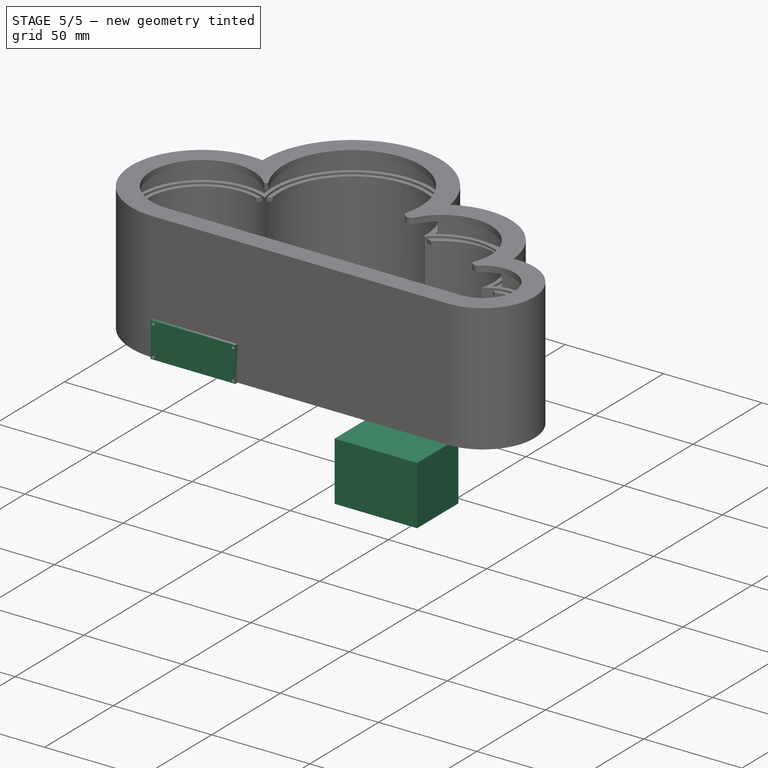
[diagram: stage 5 of 5 — iso view after this stage's code; geometry added in this stage tinted green]
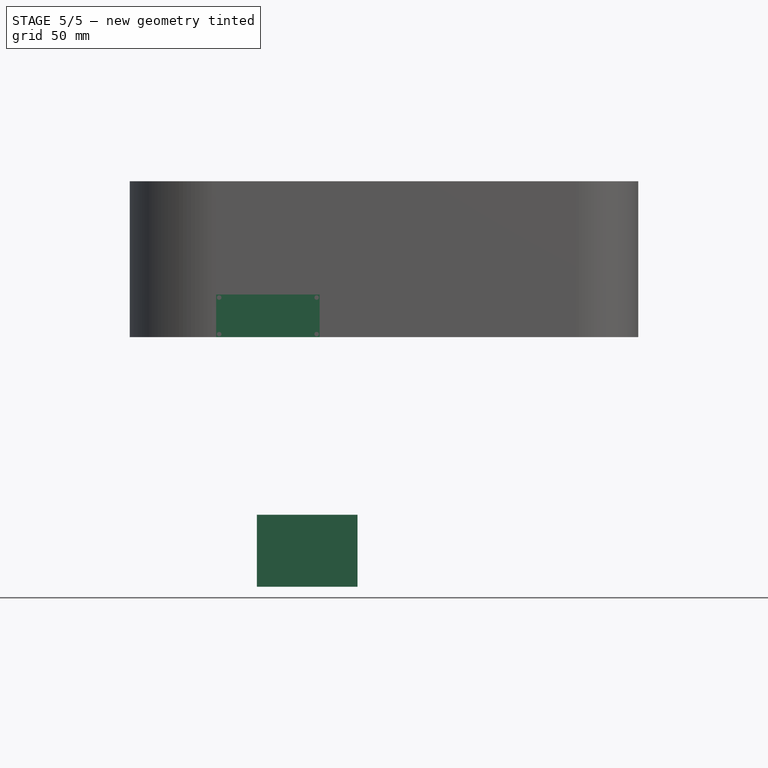
[diagram: stage 5 of 5 — front view after this stage's code; geometry added in this stage tinted green]
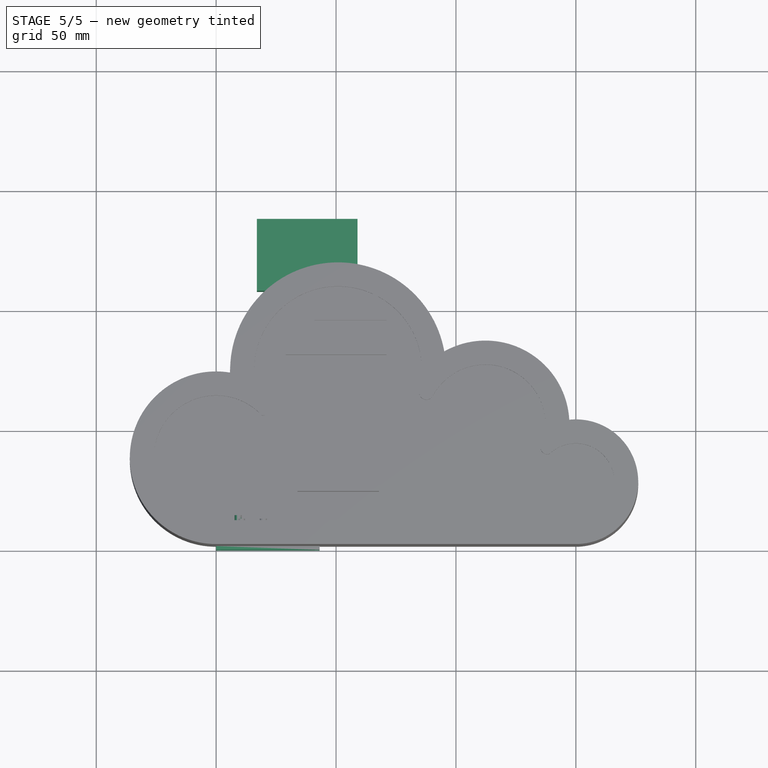
[diagram: stage 5 of 5 — top view after this stage's code; geometry added in this stage tinted green]
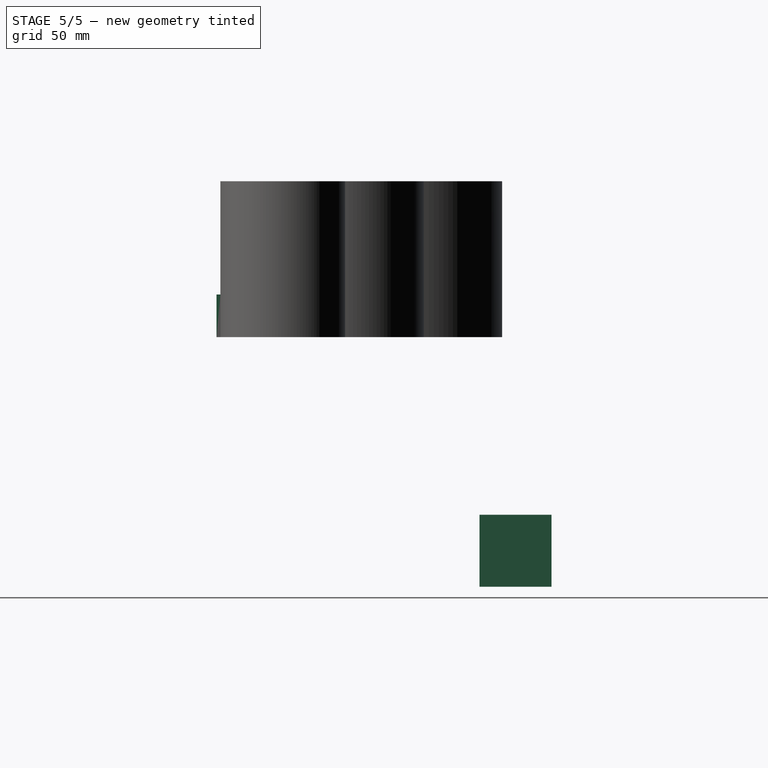
[diagram: stage 5 of 5 — right view after this stage's code; geometry added in this stage tinted green]
FEATURE [Sketcher::SketchObject] Sketch003
  MapMode = 5
  Placement = pos=(0,0,0) rot=(1,0,0;1.5708rad)
  Support = -> [XZ_Plane001]
  sketch-geometry (4):
    g0: LineSegment StartX=0 StartY=0 StartZ=0 EndX=43.18 EndY=0 EndZ=0
    g1: LineSegment StartX=43.18 StartY=0 StartZ=0 EndX=43.18 EndY=17.8 EndZ=0
    g2: LineSegment StartX=43.18 StartY=17.8 StartZ=0 EndX=0 EndY=17.8 EndZ=0
    g3: LineSegment StartX=0 StartY=17.8 StartZ=0 EndX=0 EndY=0 EndZ=0
  constraints (11):
    c: Coincident(g0,g1)
    c: Coincident(g1,g2)
    c: Coincident(g2,g3)
    c: Coincident(g3,g0)
    c: Horizontal(g0)
    c: Horizontal(g2)
    c: Vertical(g1)
    c: Vertical(g3)
    c: Coincident(g0,g-1)
    c: DistanceY(g3,g3) = 17.8
    c: DistanceX(g2,g2) = 43.18
FEATURE [PartDesign::Pad] Pad002
  Direction = (1,1,1)
  Length = 1.6
  Length2 = 100
  Placement = pos=(0,0,0) rot=(1,0,0;1.5708rad)
  Profile = -> Sketch003
  Type = 0
FEATURE [Sketcher::SketchObject] Sketch004
  ExternalGeometry = -> [Pad002]
  MapMode = 5
  Placement = pos=(0,0,0) rot=(-1,0,0;1.5708rad)
  Support = -> [Pad002]
  sketch-geometry (5):
    g0: LineSegment StartX=-1.45 StartY=-12.75 StartZ=0 EndX=7.8 EndY=-12.75 EndZ=0
    g1: LineSegment StartX=7.8 StartY=-12.75 StartZ=0 EndX=7.8 EndY=-5.05 EndZ=0
    g2: LineSegment StartX=7.8 StartY=-5.05 StartZ=0 EndX=-1.45 EndY=-5.05 EndZ=0
    g3: LineSegment StartX=-1.45 StartY=-5.05 StartZ=0 EndX=-1.45 EndY=-12.75 EndZ=0
    g4: LineSegment [constr] StartX=0 StartY=-8.9 StartZ=0 EndX=54.9147 EndY=-8.9 EndZ=0
  constraints (13):
    c: Coincident(g0,g1)
    c: Coincident(g1,g2)
    c: Coincident(g2,g3)
    c: Coincident(g3,g0)
    c: Horizontal(g0)
    c: Horizontal(g2)
    c: Vertical(g1)
    c: Vertical(g3)
    c: DistanceY(g3,g3) = 7.7
    c: DistanceX(g0,g0) = 9.25
    c: Symmetric(g-1,g-4,g4)
    c: Symmetric(g2,g0,g4)
    c: DistanceX(g2,g-1) = 1.45
FEATURE [PartDesign::Pad] Pad003
  BaseFeature = -> Pad002
  Direction = (1,1,1)
  Length = 3.9
  Length2 = 100
  Placement = pos=(0,0,0) rot=(1,0,0;1.5708rad)
  Profile = -> Sketch004
  Type = 0
FEATURE [Sketcher::SketchObject] Sketch005
  ExternalGeometry = -> [Pad003]
  MapMode = 5
  Placement = pos=(0,0,0) rot=(-1,0,0;1.5708rad)
  Support = -> [Pad003]
  expr: Constraints[12] = (43.18 - 40.64) / 2
  sketch-geometry (5):
    g0: LineSegment [constr] StartX=0 StartY=-8.9 StartZ=0 EndX=51.6363 EndY=-8.9 EndZ=0
    g1: Circle CenterX=1.27 CenterY=-16.52 CenterZ=0 NormalX=0 NormalY=0 NormalZ=1 AngleXU=0 Radius=0.925
    g2: Circle CenterX=1.27 CenterY=-1.28 CenterZ=0 NormalX=0 NormalY=0 NormalZ=1 AngleXU=0 Radius=0.925
    g3: Circle CenterX=41.91 CenterY=-1.28 CenterZ=0 NormalX=0 NormalY=0 NormalZ=1 AngleXU=0 Radius=0.925
    g4: Circle CenterX=41.91 CenterY=-16.52 CenterZ=0 NormalX=0 NormalY=0 NormalZ=1 AngleXU=0 Radius=0.925
  constraints (13):
    c: Horizontal(g0)
    c: Symmetric(g-1,g-4,g0)
    c: Diameter(g1) = 1.85
    c: Equal(g1,g2) = 1.85
    c: Symmetric(g1,g2,g0)
    c: DistanceY(g1,g2) = 15.24
    c: Equal(g1,g4) = 1.85
    c: Equal(g4,g3) = 1.85
    c: DistanceY(g4,g3) = 15.24
    c: Horizontal(g4,g1)
    c: Vertical(g4,g3)
    c: DistanceX(g1,g4) = 40.64
    c: DistanceX(g-1,g2) = 1.27
FEATURE [PartDesign::Pocket] Pocket001
  BaseFeature = -> Pad003
  Length = 5
  Length2 = 100
  Placement = pos=(0,0,0) rot=(1,0,0;1.5708rad)
  Profile = -> Sketch005
  Type = 0
FEATURE [PartDesign::Body] Body001  label="Nano"
  Group = -> [Sketch003,Pad002,Sketch004,Pad003,Sketch005,Pocket001]
  Origin = -> Origin001
  Placement = pos=(41.5452,94,-81.8589) rot=(0,0,1;0rad)
  Tip = -> Pocket001
FEATURE [PartDesign::ShapeBinder] CopyPocket
  TraceSupport = false
FEATURE [Sketcher::SketchObject] Sketch006
  MapMode = 5
  Placement = pos=(0,6,0) rot=(0,0.707107,0.707107;3.14159rad)
  Support = -> [CopyPocket]
  sketch-geometry (4):
    g0: LineSegment StartX=0 StartY=0 StartZ=0 EndX=-15.18 EndY=0 EndZ=0
    g1: LineSegment StartX=-15.18 StartY=0 StartZ=0 EndX=-15.18 EndY=14.14 EndZ=0
    g2: LineSegment StartX=-15.18 StartY=14.14 StartZ=0 EndX=0 EndY=14.14 EndZ=0
    g3: LineSegment StartX=0 StartY=14.14 StartZ=0 EndX=0 EndY=0 EndZ=0
  constraints (11):
    c: Coincident(g0,g1)
    c: Coincident(g1,g2)
    c: Coincident(g2,g3)
    c: Coincident(g3,g0)
    c: Horizontal(g0)
    c: Horizontal(g2)
    c: Vertical(g1)
    c: Vertical(g3)
    c: Coincident(g0,g-1)
    c: DistanceY(g1,g1) = 14.14
    c: DistanceX(g2,g2) = 15.18
FEATURE [PartDesign::Pad] Pad004
  Direction = (1,1,1)
  Length = 2
  Length2 = 100
  Profile = -> Sketch006
  Type = 0
FEATURE [Sketcher::SketchObject] Sketch007
  ExternalGeometry = -> [Pad004]
  MapMode = 5
  Placement = pos=(0,8,-2e-15) rot=(0,0.707107,0.707107;3.14159rad)
  Support = -> [Pad004]
  sketch-geometry (2):
    g0: Circle CenterX=-9.18 CenterY=11.64 CenterZ=0 NormalX=0 NormalY=0 NormalZ=1 AngleXU=0 Radius=1.45
    g1: Circle CenterX=-9.18 CenterY=2.5 CenterZ=0 NormalX=0 NormalY=0 NormalZ=1 AngleXU=0 Radius=1.45
  constraints (6):
    c: Diameter(g0) = 2.9
    c: DistanceY(g0,g-4) = 2.5
    c: DistanceX(g-4,g0) = 6
    c: Equal(g0,g1) = 2.9
    c: Vertical(g1,g0)
    c: DistanceY(g-6,g1) = 2.5
FEATURE [PartDesign::Pad] Pad005
  BaseFeature = -> Pad004
  Direction = (1,1,1)
  Length = 5
  Length2 = 100
  Profile = -> Sketch007
  Type = 0
FEATURE [Part::FeaturePython] Clone  label="Cubo001"  # Draft clone (typed FeaturePython)
  AttacherType = Attacher::AttachEngine3D
  Fuse = false
  Objects = -> [Box]
  Placement = pos=(16.9726,108.056,-104.049) rot=(0,0,1;0rad)
  Scale = (4.2,3,3)
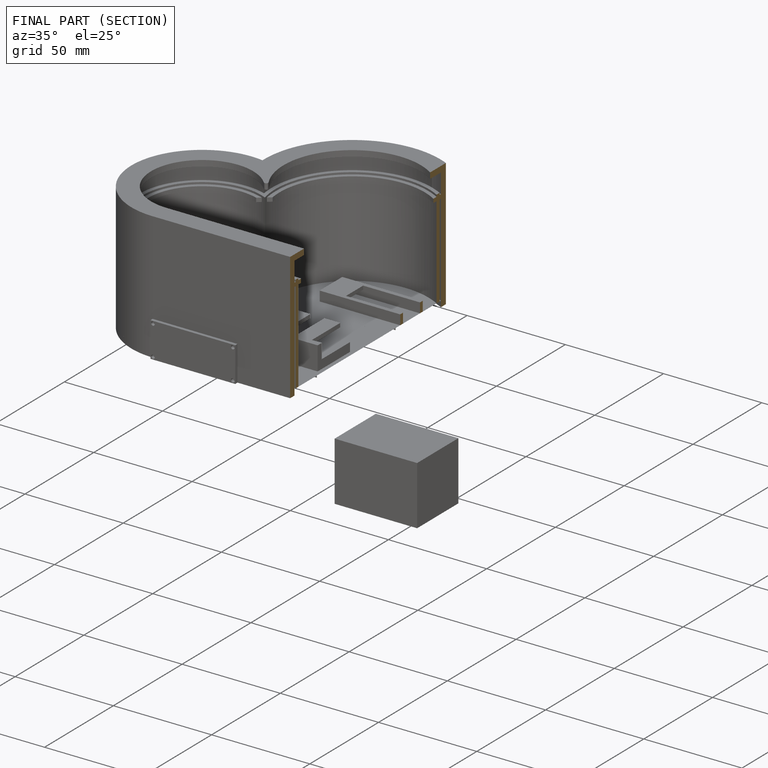
[diagram: finished part — half-section view (interior)]
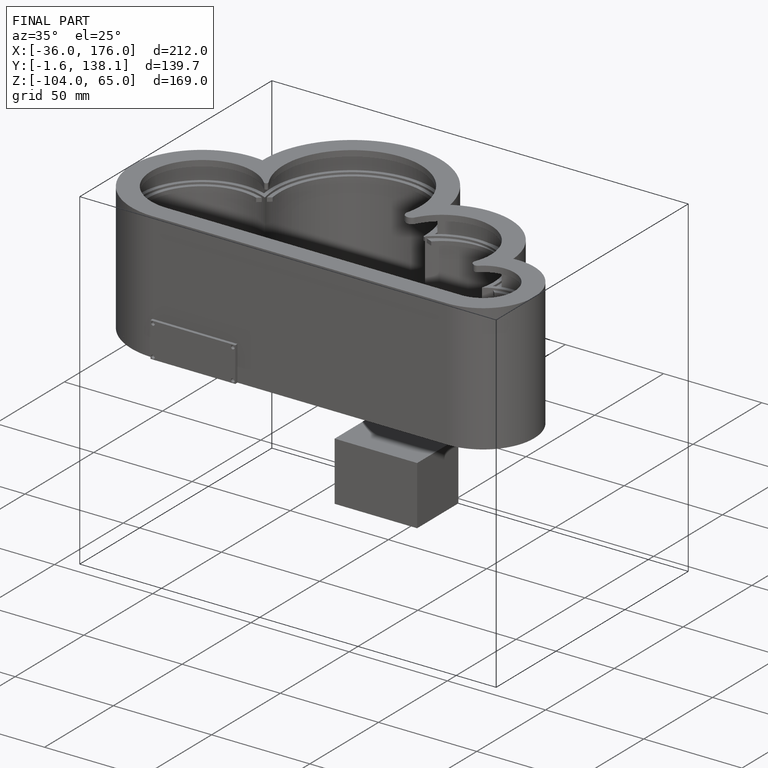
[diagram: finished part — iso view with bounding-box wireframe]
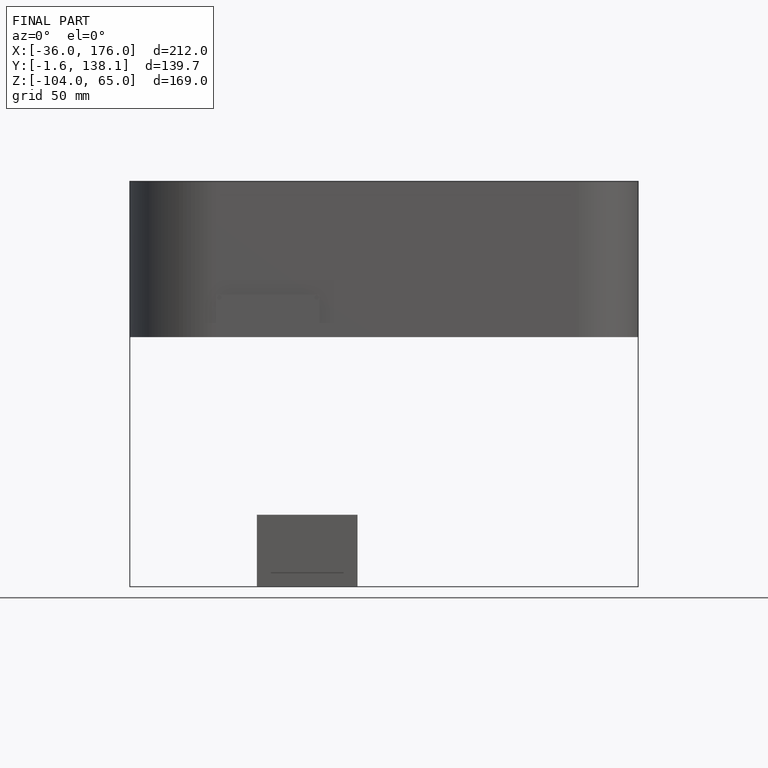
[diagram: finished part — front view with bounding-box wireframe]
